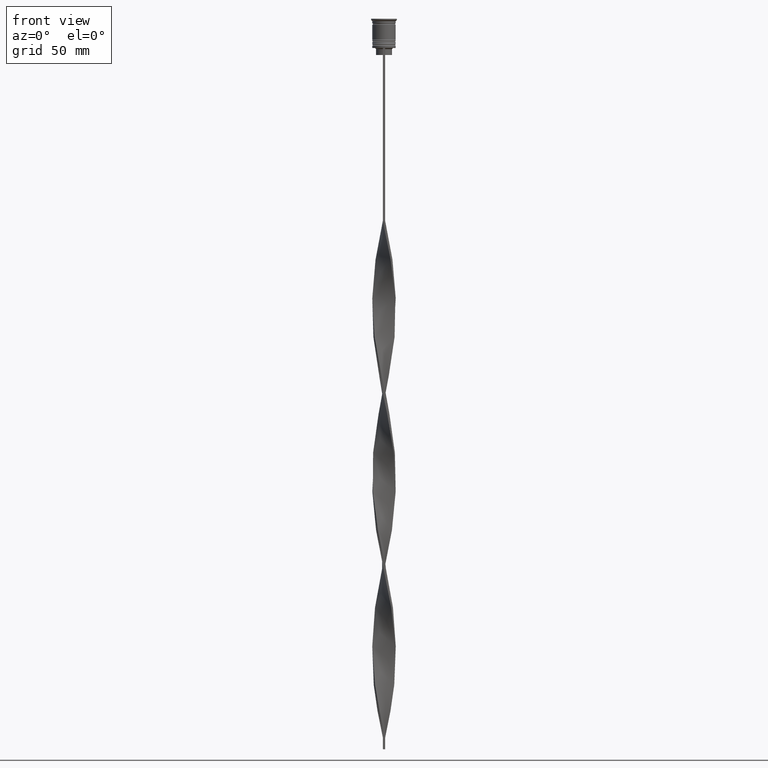
[diagram: clean part render]
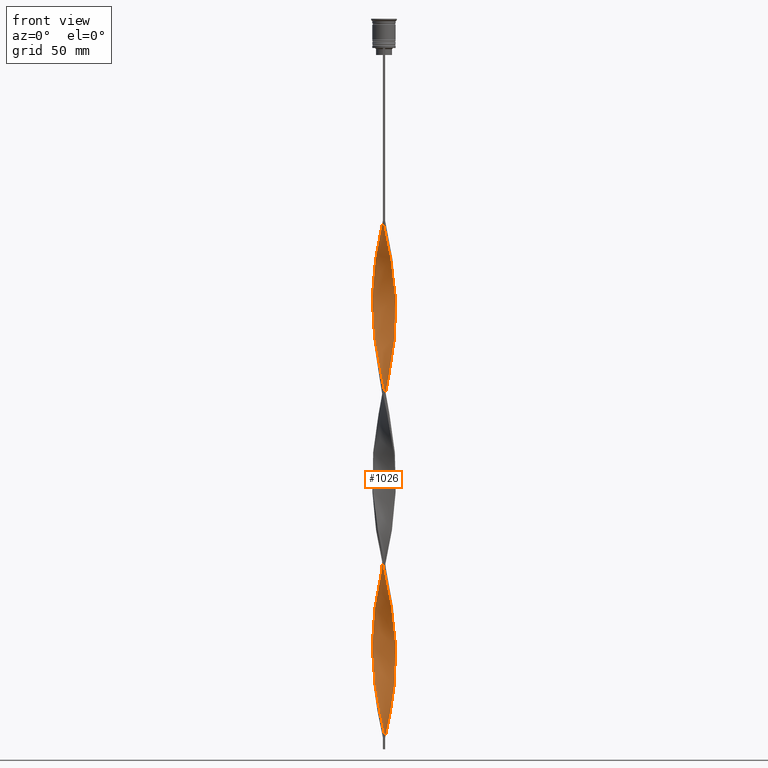
[diagram: same view with one face highlighted and labeled with its STEP entity id]
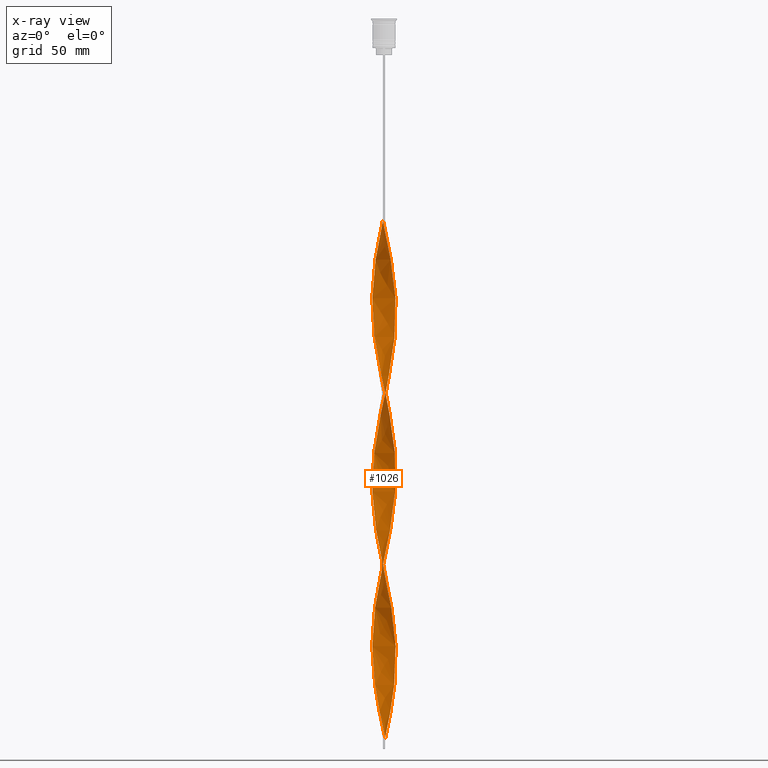
[diagram: x-ray of the same camera — body ghosted, the highlighted face saturated]
A machine part, front view. The second image highlights one B-rep face of the part: STEP entity #1026.
The next image is the same camera in x-ray: the body ghosted, the highlighted face saturated — about 0% of this face is hidden behind the body in this view.
In plain terms, the highlighted face is a freeform B-spline surface patch.
Its self-contained STEP definition (entity closure, byte-faithful):
#8 = CARTESIAN_POINT ( 'NONE',  ( -0.9143118122538339554, 4.958568818774617526, -88.43859649122805422 ) ) ;
#13 = CARTESIAN_POINT ( 'NONE',  ( 1.940000089582122778, -4.635342452550982095, -98.13157894736841058 ) ) ;
#17 = CARTESIAN_POINT ( 'NONE',  ( -1.940000089582124554, -4.635342452550982983, -148.5350877192982466 ) ) ;
#26 = CARTESIAN_POINT ( 'NONE',  ( -3.767136494507089317, 3.351425585076241553, -103.9473684210526159 ) ) ;
#31 = CARTESIAN_POINT ( 'NONE',  ( 4.651228756897744177, 1.946648882453701823, -134.9649122807017534 ) ) ;
#34 = CARTESIAN_POINT ( 'NONE',  ( 4.724258586126254933, 1.712127568673659450, -202.8157894736842195 ) ) ;
#48 = CARTESIAN_POINT ( 'NONE',  ( -4.651228756897745953, 1.946648882453702933, -111.7017543859649038 ) ) ;
#57 = CARTESIAN_POINT ( 'NONE',  ( 2.324095515968828352, -4.474589461973507376, -247.4035087719297792 ) ) ;
#61 = CARTESIAN_POINT ( 'NONE',  ( 1.150588725173101512, 4.891435943105515882, -226.0789473684210407 ) ) ;
#76 = CARTESIAN_POINT ( 'NONE',  ( -3.465633818146536704, -3.638596190637132466, -218.3245614035087954 ) ) ;
#80 = CARTESIAN_POINT ( 'NONE',  ( -3.028891101531455909, -4.031028344680096076, -142.7192982456140271 ) ) ;
#89 = CARTESIAN_POINT ( 'NONE',  ( -4.267384183849968871, 2.685666220508038382, -255.1578947368421382 ) ) ;
#94 = CARTESIAN_POINT ( 'NONE',  ( 3.651066433574118975, -3.477511282250445923, -255.1578947368421382 ) ) ;
#108 = CARTESIAN_POINT ( 'NONE',  ( 0.08568818774616430989, -5.041431181225384250, -158.2280701754386030 ) ) ;
#130 = CARTESIAN_POINT ( 'NONE',  ( -3.028891101531454133, 4.031028344680096076, -177.6140350877192873 ) ) ;
#135 = CARTESIAN_POINT ( 'NONE',  ( 1.555904663195420756, 4.796095443128455926, -224.1403508771929864 ) ) ;
#140 = CARTESIAN_POINT ( 'NONE',  ( -2.474816539791244274, -4.393023322829788135, -224.1403508771929864 ) ) ;
#146 = CARTESIAN_POINT ( 'NONE',  ( -0.08568818774616615563, -5.041431181225382474, -88.43859649122805422 ) ) ;
#151 = CARTESIAN_POINT ( 'NONE',  ( 0.3297922997023119973, 5.014103812153979156, -229.9561403508772059 ) ) ;
#161 = CARTESIAN_POINT ( 'NONE',  ( -3.028891101531455909, -4.031028344680096076, -290.0526315789473415 ) ) ;
#164 = CARTESIAN_POINT ( 'NONE',  ( 3.028891101531455021, -4.031028344680095188, -103.9473684210526301 ) ) ;
#169 = CARTESIAN_POINT ( 'NONE',  ( -3.767136494507089317, 3.351425585076241553, -251.2807017543860013 ) ) ;
#174 = EDGE_CURVE ( 'NONE', #1637, #3232, #605, .T. ) ;
#182 = CARTESIAN_POINT ( 'NONE',  ( -4.459306470373856968, 2.316157551480870769, -257.0964912280701924 ) ) ;
#188 = CARTESIAN_POINT ( 'NONE',  ( 1.150588725173099736, -4.891435943105514106, -94.25438596491227372 ) ) ;
#192 = CARTESIAN_POINT ( 'NONE',  ( -4.724258586126254045, -1.712127568673661004, -276.4824561403509051 ) ) ;
#200 = CARTESIAN_POINT ( 'NONE',  ( -0.5000000000000000000, -4.999999999999999112, -86.50000000000000000 ) ) ;
#207 = CARTESIAN_POINT ( 'NONE',  ( -4.724258586126252268, 1.712127568673660560, -191.1842105263157805 ) ) ;
#210 = CARTESIAN_POINT ( 'NONE',  ( -4.866129521283641068, -1.320664341398920527, -274.5438596491227941 ) ) ;
#224 = CARTESIAN_POINT ( 'NONE',  ( 4.941632792297182775, -0.9111889738649967541, -268.7280701754385746 ) ) ;
#244 = CARTESIAN_POINT ( 'NONE',  ( 1.717995393956228911, 4.740449624971873277, -301.6842105263157805 ) ) ;
#252 = CARTESIAN_POINT ( 'NONE',  ( -3.651066433574120751, -3.477511282250446811, -286.1754385964911762 ) ) ;
#259 = CARTESIAN_POINT ( 'NONE',  ( 0.4999999999999997780, -1.666666666666667851, -307.5000000000000000 ) ) ;
#267 = CARTESIAN_POINT ( 'NONE',  ( 3.912358312251428938, -3.153324029743398427, -257.0964912280701924 ) ) ;
#285 =( BOUNDED_SURFACE ( )  B_SPLINE_SURFACE ( 1, 2, ( 
 ( #3938, #146, #3997, #1792, #188, #2994, #3030, #3683, #478, #164, #3343, #2391, #1735, #1751, #1108, #3070, #3012, #1132, #2694, #462, #2735, #3295, #1147, #772, #3666, #440, #3377, #1469, #816, #2405, #2367, #1447, #1071, #1427, #2712, #3955, #3648, #3322, #3976, #2079, #831, #2096, #1715, #3358, #798, #2062, #2675, #130, #496, #2348, #3623, #519, #1768, #3049, #207, #2041, #2654, #2329, #3919, #3604, #754, #2020, #1407, #1091, #2157, #2137, #536, #1165, #2835, #578, #3085, #556, #290, #1524, #3128, #4013, #4081, #875, #1810, #2792, #606, #1187, #3414, #1851, #1211, #3786, #1231, #3101, #267, #854, #3431, #3398, #1828, #1546, #224, #2814, #2489, #3764, #1563, #2422, #2467, #2448, #3743, #1254, #4105, #1894, #1873, #2205, #2517, #2768, #1501, #244, #939, #3478, #895 ),
 ( #4059, #4033, #917, #2182, #3458, #3703, #3169, #3724, #627, #1487, #3149, #2752, #2118, #1628, #2264, #962, #3498, #1587, #982, #2628, #3523, #1917, #2537, #2244, #398, #668, #2223, #1648, #354, #80, #734, #1341, #17, #3194, #1358, #2930, #645, #4132, #337, #2303, #312, #2904, #1611, #1936, #3871, #3889, #1272, #1006, #2865, #1043, #2884, #3584, #1953, #1314, #3541, #1293, #1672, #3212, #2951, #1027, #34, #3808, #1997, #707, #3233, #3826, #2557, #2284, #2587, #3850, #686, #373, #61, #2610, #3560, #1975, #3257, #1443, #828, #2968, #3661, #434, #767, #492, #2402, #812, #3601, #3640, #182, #1105, #793, #3952, #3027, #2345, #2361, #1731, #3680, #3620, #1748, #3314, #1087, #3355, #3915, #1764, #1403, #161, #1068, #3993, #2075, #2707, #3044, #3009, #2058, #1691, #2035 ) ),
 .UNSPECIFIED., .F., .F., .F. ) 
 B_SPLINE_SURFACE_WITH_KNOTS ( ( 2, 2 ),
 ( 3, 2, 2, 2, 2, 2, 2, 2, 2, 2, 2, 2, 2, 2, 2, 2, 2, 2, 2, 2, 2, 2, 2, 2, 2, 2, 2, 2, 2, 2, 2, 2, 2, 2, 2, 2, 2, 2, 2, 2, 2, 2, 2, 2, 2, 2, 2, 2, 2, 2, 2, 2, 2, 2, 2, 2, 2, 3 ),
 ( 0.000000000000000000, 1.000000000000000000 ),
 ( 0.000000000000000000, 0.01315789473684210453, 0.02631578947368420907, 0.03947368421052631360, 0.05263157894736841813, 0.06578947368421052266, 0.07894736842105262720, 0.09210526315789473173, 0.1052631578947368363, 0.1184210526315789408, 0.1315789473684210453, 0.1447368421052631637, 0.1578947368421052544, 0.1710526315789473728, 0.1842105263157894635, 0.1973684210526315819, 0.2105263157894736725, 0.2236842105263157909, 0.2368421052631578816, 0.2500000000000000000, 0.2631578947368420907, 0.2763157894736842368, 0.2894736842105263275, 0.3026315789473684181, 0.3157894736842105088, 0.3289473684210526550, 0.3421052631578947456, 0.3552631578947368363, 0.3684210526315789269, 0.3815789473684210731, 0.3947368421052631637, 0.4078947368421052544, 0.4210526315789473450, 0.4342105263157894912, 0.4473684210526315819, 0.4605263157894736725, 0.4736842105263157632, 0.4868421052631579093, 0.5000000000000000000, 0.5131578947368421462, 0.5263157894736841813, 0.5394736842105263275, 0.5526315789473684736, 0.5657894736842105088, 0.5789473684210526550, 0.5921052631578946901, 0.6052631578947368363, 0.6184210526315789824, 0.6315789473684210176, 0.6447368421052631637, 0.6578947368421053099, 0.6710526315789473450, 0.6842105263157894912, 0.6973684210526315264, 0.7105263157894736725, 0.7236842105263158187, 0.7368421052631578538, 0.7500000000000000000 ),
 .UNSPECIFIED. ) 
 GEOMETRIC_REPRESENTATION_ITEM ( )  RATIONAL_B_SPLINE_SURFACE ( (
 ( 1.000000000000000000, 0.9965844930066698470, 1.000000000000000000, 0.9965844930066698470, 1.000000000000000000, 0.9965844930066698470, 1.000000000000000000, 0.9965844930066698470, 1.000000000000000000, 0.9965844930066698470, 1.000000000000000000, 0.9965844930066698470, 1.000000000000000000, 0.9965844930066698470, 1.000000000000000000, 0.9965844930066698470, 1.000000000000000000, 0.9965844930066698470, 1.000000000000000000, 0.9965844930066698470, 1.000000000000000000, 0.9965844930066698470, 1.000000000000000000, 0.9965844930066698470, 1.000000000000000000, 0.9965844930066698470, 1.000000000000000000, 0.9965844930066698470, 1.000000000000000000, 0.9965844930066698470, 1.000000000000000000, 0.9965844930066698470, 1.000000000000000000, 0.9965844930066698470, 1.000000000000000000, 0.9965844930066698470, 1.000000000000000000, 0.9965844930066698470, 1.000000000000000000, 0.9965844930066698470, 1.000000000000000000, 0.9965844930066698470, 1.000000000000000000, 0.9965844930066698470, 1.000000000000000000, 0.9965844930066698470, 1.000000000000000000, 0.9965844930066698470, 1.000000000000000000, 0.9965844930066698470, 1.000000000000000000, 0.9965844930066698470, 1.000000000000000000, 0.9965844930066698470, 1.000000000000000000, 0.9965844930066698470, 1.000000000000000000, 0.9965844930066698470, 1.000000000000000000, 0.9965844930066698470, 1.000000000000000000, 0.9965844930066698470, 1.000000000000000000, 0.9965844930066698470, 1.000000000000000000, 0.9965844930066698470, 1.000000000000000000, 0.9965844930066698470, 1.000000000000000000, 0.9965844930066698470, 1.000000000000000000, 0.9965844930066698470, 1.000000000000000000, 0.9965844930066698470, 1.000000000000000000, 0.9965844930066698470, 1.000000000000000000, 0.9965844930066698470, 1.000000000000000000, 0.9965844930066698470, 1.000000000000000000, 0.9965844930066698470, 1.000000000000000000, 0.9965844930066698470, 1.000000000000000000, 0.9965844930066698470, 1.000000000000000000, 0.9965844930066698470, 1.000000000000000000, 0.9965844930066698470, 1.000000000000000000, 0.9965844930066698470, 1.000000000000000000, 0.9965844930066698470, 1.000000000000000000, 0.9965844930066698470, 1.000000000000000000, 0.9965844930066698470, 1.000000000000000000, 0.9965844930066698470, 1.000000000000000000, 0.9965844930066698470, 1.000000000000000000, 0.9965844930066698470, 1.000000000000000000, 0.9965844930066698470, 1.000000000000000000, 0.9965844930066698470, 1.000000000000000000, 0.9965844930066698470, 1.000000000000000000, 0.9965844930066698470, 1.000000000000000000, 0.9965844930066698470, 1.000000000000000000),
 ( 1.000000000000000000, 0.9965844930066698470, 1.000000000000000000, 0.9965844930066698470, 1.000000000000000000, 0.9965844930066698470, 1.000000000000000000, 0.9965844930066698470, 1.000000000000000000, 0.9965844930066698470, 1.000000000000000000, 0.9965844930066698470, 1.000000000000000000, 0.9965844930066698470, 1.000000000000000000, 0.9965844930066698470, 1.000000000000000000, 0.9965844930066698470, 1.000000000000000000, 0.9965844930066698470, 1.000000000000000000, 0.9965844930066698470, 1.000000000000000000, 0.9965844930066698470, 1.000000000000000000, 0.9965844930066698470, 1.000000000000000000, 0.9965844930066698470, 1.000000000000000000, 0.9965844930066698470, 1.000000000000000000, 0.9965844930066698470, 1.000000000000000000, 0.9965844930066698470, 1.000000000000000000, 0.9965844930066698470, 1.000000000000000000, 0.9965844930066698470, 1.000000000000000000, 0.9965844930066698470, 1.000000000000000000, 0.9965844930066698470, 1.000000000000000000, 0.9965844930066698470, 1.000000000000000000, 0.9965844930066698470, 1.000000000000000000, 0.9965844930066698470, 1.000000000000000000, 0.9965844930066698470, 1.000000000000000000, 0.9965844930066698470, 1.000000000000000000, 0.9965844930066698470, 1.000000000000000000, 0.9965844930066698470, 1.000000000000000000, 0.9965844930066698470, 1.000000000000000000, 0.9965844930066698470, 1.000000000000000000, 0.9965844930066698470, 1.000000000000000000, 0.9965844930066698470, 1.000000000000000000, 0.9965844930066698470, 1.000000000000000000, 0.9965844930066698470, 1.000000000000000000, 0.9965844930066698470, 1.000000000000000000, 0.9965844930066698470, 1.000000000000000000, 0.9965844930066698470, 1.000000000000000000, 0.9965844930066698470, 1.000000000000000000, 0.9965844930066698470, 1.000000000000000000, 0.9965844930066698470, 1.000000000000000000, 0.9965844930066698470, 1.000000000000000000, 0.9965844930066698470, 1.000000000000000000, 0.9965844930066698470, 1.000000000000000000, 0.9965844930066698470, 1.000000000000000000, 0.9965844930066698470, 1.000000000000000000, 0.9965844930066698470, 1.000000000000000000, 0.9965844930066698470, 1.000000000000000000, 0.9965844930066698470, 1.000000000000000000, 0.9965844930066698470, 1.000000000000000000, 0.9965844930066698470, 1.000000000000000000, 0.9965844930066698470, 1.000000000000000000, 0.9965844930066698470, 1.000000000000000000, 0.9965844930066698470, 1.000000000000000000, 0.9965844930066698470, 1.000000000000000000, 0.9965844930066698470, 1.000000000000000000, 0.9965844930066698470, 1.000000000000000000, 0.9965844930066698470, 1.000000000000000000) ) ) 
 REPRESENTATION_ITEM ( '' )  SURFACE ( )  );
#286 = CARTESIAN_POINT ( 'NONE',  ( -0.5000000000000000000, -4.999999999999999112, -86.50000000000000000 ) ) ;
#290 = CARTESIAN_POINT ( 'NONE',  ( -2.096405966873735593, -4.566736473900831150, -226.0789473684210407 ) ) ;
#300 = CARTESIAN_POINT ( 'NONE',  ( -5.024212137769516140, -0.08539551914167284319, -121.3947368421052460 ) ) ;
#307 = CARTESIAN_POINT ( 'NONE',  ( 5.031288212228303358, 0.3309225680477255738, -127.2105263157894370 ) ) ;
#312 = CARTESIAN_POINT ( 'NONE',  ( 1.316153603105030268, -4.849509221873245401, -164.0438596491227941 ) ) ;
#333 = CARTESIAN_POINT ( 'NONE',  ( -3.912358312251428938, 3.153324029743398427, -183.4298245614035068 ) ) ;
#337 = CARTESIAN_POINT ( 'NONE',  ( 0.4999999999999993339, -5.000000000000000888, -160.1666666666666856 ) ) ;
#351 = CARTESIAN_POINT ( 'NONE',  ( -4.969744073267051476, -0.7427273027343286316, -202.8157894736842195 ) ) ;
#354 = CARTESIAN_POINT ( 'NONE',  ( -3.339978767552788774, -3.754269813465271000, -140.7807017543859445 ) ) ;
#365 = CARTESIAN_POINT ( 'NONE',  ( -4.378018920948803405, -2.466363786592375540, -133.0263157894736992 ) ) ;
#370 = CARTESIAN_POINT ( 'NONE',  ( -5.031288212228303358, -0.3309225680477228537, -200.8771929824561369 ) ) ;
#373 = CARTESIAN_POINT ( 'NONE',  ( 1.555904663195420978, 4.796095443128456814, -224.1403508771929580 ) ) ;
#394 = CARTESIAN_POINT ( 'NONE',  ( 0.9143118122538356207, 4.958568818774615750, -305.5614035087719458 ) ) ;
#398 = CARTESIAN_POINT ( 'NONE',  ( -4.378018920948803405, -2.466363786592375540, -133.0263157894736992 ) ) ;
#406 = CARTESIAN_POINT ( 'NONE',  ( -4.908199934305800483, 1.154532037420935797, -262.9122807017543551 ) ) ;
#413 = CARTESIAN_POINT ( 'NONE',  ( 3.912358312251428938, -3.153324029743398427, -257.0964912280701924 ) ) ;
#424 = CARTESIAN_POINT ( 'NONE',  ( 5.031288212228304246, -0.3309225680477295151, -193.1228070175438347 ) ) ;
#431 = CARTESIAN_POINT ( 'NONE',  ( -0.08568818774616615563, -5.041431181225382474, -235.7719298245613970 ) ) ;
#434 = CARTESIAN_POINT ( 'NONE',  ( -2.474816539791242054, 4.393023322829790800, -243.5263157894736707 ) ) ;
#440 = CARTESIAN_POINT ( 'NONE',  ( 4.651228756897745065, 1.946648882453701823, -134.9649122807017534 ) ) ;
#445 = CARTESIAN_POINT ( 'NONE',  ( 4.969744073267052364, -0.7427273027343305190, -191.1842105263157805 ) ) ;
#452 = CARTESIAN_POINT ( 'NONE',  ( 5.031288212228303358, 0.3309225680477255738, -274.5438596491227941 ) ) ;
#462 = CARTESIAN_POINT ( 'NONE',  ( 5.017136063310725369, -0.5017136063310729810, -123.3333333333333286 ) ) ;
#464 = EDGE_CURVE ( 'NONE', #3232, #1670, #2842, .T. ) ;
#466 = CARTESIAN_POINT ( 'NONE',  ( 4.651228756897744177, -1.946648882453705376, -185.3684210526315610 ) ) ;
#478 = CARTESIAN_POINT ( 'NONE',  ( 2.676493308750141686, -4.252808903326800838, -102.0087719298245474 ) ) ;
#483 = CARTESIAN_POINT ( 'NONE',  ( 2.676493308750143907, 4.252808903326801726, -218.3245614035087954 ) ) ;
#492 = CARTESIAN_POINT ( 'NONE',  ( -3.164131141785982759, 3.925766796198028263, -247.4035087719297792 ) ) ;
#496 = CARTESIAN_POINT ( 'NONE',  ( -3.339978767552784777, 3.754269813465272332, -179.5526315789473415 ) ) ;
#500 = CARTESIAN_POINT ( 'NONE',  ( -3.028891101531455909, -4.031028344680096076, -290.0526315789473415 ) ) ;
#519 = CARTESIAN_POINT ( 'NONE',  ( -4.173650190928737125, 2.829136777236351818, -185.3684210526315894 ) ) ;
#536 = CARTESIAN_POINT ( 'NONE',  ( -4.017260339178530870, -3.018545902792136193, -214.4473684210526301 ) ) ;
#556 = CARTESIAN_POINT ( 'NONE',  ( -2.474816539791244274, -4.393023322829788135, -224.1403508771929580 ) ) ;
#578 = CARTESIAN_POINT ( 'NONE',  ( -3.164131141785982315, -3.925766796198026487, -220.2631578947368212 ) ) ;
#601 = CARTESIAN_POINT ( 'NONE',  ( 1.555904663195416759, -4.796095443128455038, -96.19298245614034215 ) ) ;
#605 =( BOUNDED_CURVE ( )  B_SPLINE_CURVE ( 2, ( #286, #910, #623, #2900, #1889, #601, #13, #2859, #2579, #3227, #3822, #2511, #1560, #3844, #1289, #3454, #2484, #2830, #682, #2810, #4125, #307, #1580, #3782, #3758, #31, #1269, #3473, #4100, #1624, #3804, #1309, #1002, #1247, #978, #641, #934, #2200, #2178, #2879, #1870, #1911, #2220, #2260, #1228, #3494, #3537, #3190, #3145, #4076, #333, #1932, #1605, #2553, #2238, #1950, #3519, #665, #3207, #370, #351, #1992, #2358, #703, #3635, #3289, #2642, #748, #76, #3005, #730, #140, #1084, #3273, #2605, #1101, #2031, #431, #1040, #1728, #2341, #3908, #2964, #57, #1970, #1420, #1642, #94, #413, #3932, #3336, #1337, #3308, #2946, #1687, #2687, #786, #452, #2922, #3866, #3949, #2055, #1355, #1667, #1372, #1023, #2280, #1065, #3556, #3615, #3251, #2299, #2322, #394, #3577 ),
 .UNSPECIFIED., .F., .T. ) 
 B_SPLINE_CURVE_WITH_KNOTS ( ( 3, 2, 2, 2, 2, 2, 2, 2, 2, 2, 2, 2, 2, 2, 2, 2, 2, 2, 2, 2, 2, 2, 2, 2, 2, 2, 2, 2, 2, 2, 2, 2, 2, 2, 2, 2, 2, 2, 2, 2, 2, 2, 2, 2, 2, 2, 2, 2, 2, 2, 2, 2, 2, 2, 2, 2, 2, 3 ),
 ( 0.000000000000000000, 0.01315789473684210453, 0.02631578947368420907, 0.03947368421052631360, 0.05263157894736841813, 0.06578947368421052266, 0.07894736842105262720, 0.09210526315789473173, 0.1052631578947368363, 0.1184210526315789408, 0.1315789473684210453, 0.1447368421052631637, 0.1578947368421052544, 0.1710526315789473728, 0.1842105263157894635, 0.1973684210526315541, 0.2105263157894736725, 0.2236842105263157909, 0.2368421052631578816, 0.2500000000000000000, 0.2631578947368420907, 0.2763157894736842368, 0.2894736842105263275, 0.3026315789473684181, 0.3157894736842105088, 0.3289473684210526550, 0.3421052631578947456, 0.3552631578947368918, 0.3684210526315789269, 0.3815789473684210731, 0.3947368421052631082, 0.4078947368421052544, 0.4210526315789473450, 0.4342105263157895467, 0.4473684210526315819, 0.4605263157894736725, 0.4736842105263157632, 0.4868421052631579093, 0.5000000000000000000, 0.5131578947368421462, 0.5263157894736841813, 0.5394736842105263275, 0.5526315789473684736, 0.5657894736842105088, 0.5789473684210526550, 0.5921052631578946901, 0.6052631578947368363, 0.6184210526315789824, 0.6315789473684210176, 0.6447368421052631637, 0.6578947368421053099, 0.6710526315789473450, 0.6842105263157894912, 0.6973684210526315264, 0.7105263157894737835, 0.7236842105263158187, 0.7368421052631578538, 0.7500000000000000000 ),
 .UNSPECIFIED. ) 
 CURVE ( )  GEOMETRIC_REPRESENTATION_ITEM ( )  RATIONAL_B_SPLINE_CURVE ( ( 1.000000000000000000, 0.9965844930066698470, 1.000000000000000000, 0.9965844930066698470, 1.000000000000000000, 0.9965844930066698470, 1.000000000000000000, 0.9965844930066698470, 1.000000000000000000, 0.9965844930066698470, 1.000000000000000000, 0.9965844930066698470, 1.000000000000000000, 0.9965844930066698470, 1.000000000000000000, 0.9965844930066698470, 1.000000000000000000, 0.9965844930066698470, 1.000000000000000000, 0.9965844930066698470, 1.000000000000000000, 0.9965844930066698470, 1.000000000000000000, 0.9965844930066698470, 1.000000000000000000, 0.9965844930066698470, 1.000000000000000000, 0.9965844930066698470, 1.000000000000000000, 0.9965844930066698470, 1.000000000000000000, 0.9965844930066698470, 1.000000000000000000, 0.9965844930066698470, 1.000000000000000000, 0.9965844930066698470, 1.000000000000000000, 0.9965844930066698470, 1.000000000000000000, 0.9965844930066698470, 1.000000000000000000, 0.9965844930066698470, 1.000000000000000000, 0.9965844930066698470, 1.000000000000000000, 0.9965844930066698470, 1.000000000000000000, 0.9965844930066698470, 1.000000000000000000, 0.9965844930066698470, 1.000000000000000000, 0.9965844930066698470, 1.000000000000000000, 0.9965844930066698470, 1.000000000000000000, 0.9965844930066698470, 1.000000000000000000, 0.9965844930066698470, 1.000000000000000000, 0.9965844930066698470, 1.000000000000000000, 0.9965844930066698470, 1.000000000000000000, 0.9965844930066698470, 1.000000000000000000, 0.9965844930066698470, 1.000000000000000000, 0.9965844930066698470, 1.000000000000000000, 0.9965844930066698470, 1.000000000000000000, 0.9965844930066698470, 1.000000000000000000, 0.9965844930066698470, 1.000000000000000000, 0.9965844930066698470, 1.000000000000000000, 0.9965844930066698470, 1.000000000000000000, 0.9965844930066698470, 1.000000000000000000, 0.9965844930066698470, 1.000000000000000000, 0.9965844930066698470, 1.000000000000000000, 0.9965844930066698470, 1.000000000000000000, 0.9965844930066698470, 1.000000000000000000, 0.9965844930066698470, 1.000000000000000000, 0.9965844930066698470, 1.000000000000000000, 0.9965844930066698470, 1.000000000000000000, 0.9965844930066698470, 1.000000000000000000, 0.9965844930066698470, 1.000000000000000000, 0.9965844930066698470, 1.000000000000000000, 0.9965844930066698470, 1.000000000000000000, 0.9965844930066698470, 1.000000000000000000, 0.9965844930066698470, 1.000000000000000000, 0.9965844930066698470, 1.000000000000000000, 0.9965844930066698470, 1.000000000000000000, 0.9965844930066698470, 1.000000000000000000, 0.9965844930066698470, 1.000000000000000000 ) ) 
 REPRESENTATION_ITEM ( '' )  );
#606 = CARTESIAN_POINT ( 'NONE',  ( 1.150588725173099736, -4.891435943105514106, -241.5877192982455881 ) ) ;
#618 = CARTESIAN_POINT ( 'NONE',  ( -0.5000000000000000000, 5.000000000000000888, -86.50000000000000000 ) ) ;
#619 = CARTESIAN_POINT ( 'NONE',  ( 0.5000000000000006661, 4.999999999999999112, -307.5000000000000000 ) ) ;
#623 = CARTESIAN_POINT ( 'NONE',  ( 0.3297922997023081670, -5.014103812153978268, -90.37719298245613686 ) ) ;
#627 = CARTESIAN_POINT ( 'NONE',  ( -3.465633818146536704, 3.638596190637135130, -102.0087719298245474 ) ) ;
#635 = CARTESIAN_POINT ( 'NONE',  ( -4.173650190928740678, -2.829136777236350486, -134.9649122807017534 ) ) ;
#641 = CARTESIAN_POINT ( 'NONE',  ( 1.717995393956228911, 4.740449624971872389, -154.3508771929824661 ) ) ;
#645 = CARTESIAN_POINT ( 'NONE',  ( -0.3297922997023091662, -5.014103812153980044, -156.2894736842105203 ) ) ;
#665 = CARTESIAN_POINT ( 'NONE',  ( -5.017136063310725369, 0.5017136063310736471, -197.0000000000000000 ) ) ;
#668 = CARTESIAN_POINT ( 'NONE',  ( -4.173650190928740678, -2.829136777236350486, -134.9649122807017534 ) ) ;
#682 = CARTESIAN_POINT ( 'NONE',  ( 4.941632792297182775, -0.9111889738649967541, -121.3947368421052460 ) ) ;
#686 = CARTESIAN_POINT ( 'NONE',  ( 1.940000089582126774, 4.635342452550982095, -222.2017543859649038 ) ) ;
#696 = CARTESIAN_POINT ( 'NONE',  ( -4.941632792297183663, -0.9111889738649963100, -125.2719298245613970 ) ) ;
#703 = CARTESIAN_POINT ( 'NONE',  ( -4.651228756897745065, -1.946648882453699159, -208.6315789473684106 ) ) ;
#707 = CARTESIAN_POINT ( 'NONE',  ( 4.173650190928741566, 2.829136777236347822, -208.6315789473684106 ) ) ;
#722 = CARTESIAN_POINT ( 'NONE',  ( -4.651228756897745953, 1.946648882453702933, -259.0350877192983035 ) ) ;
#730 = CARTESIAN_POINT ( 'NONE',  ( -2.819473840788614627, -4.159395059513905757, -222.2017543859649038 ) ) ;
#734 = CARTESIAN_POINT ( 'NONE',  ( -2.676493308750143463, -4.252808903326802614, -144.6578947368421098 ) ) ;
#742 = CARTESIAN_POINT ( 'NONE',  ( 4.582387650968867021, 2.103590795948400594, -204.7543859649123021 ) ) ;
#748 = CARTESIAN_POINT ( 'NONE',  ( -3.767136494507089761, -3.351425585076238001, -216.3859649122807127 ) ) ;
#754 = CARTESIAN_POINT ( 'NONE',  ( -4.969744073267051476, -0.7427273027343286316, -202.8157894736842195 ) ) ;
#758 = CARTESIAN_POINT ( 'NONE',  ( -1.717995393956227135, 4.740449624971874165, -239.6491228070175339 ) ) ;
#767 = CARTESIAN_POINT ( 'NONE',  ( -2.819473840788612851, 4.159395059513909310, -245.4649122807017534 ) ) ;
#772 = CARTESIAN_POINT ( 'NONE',  ( 4.908199934305798706, 1.154532037420934687, -131.0877192982456449 ) ) ;
#777 = CARTESIAN_POINT ( 'NONE',  ( 3.465633818146536704, -3.638596190637135130, -175.6754385964912046 ) ) ;
#786 = CARTESIAN_POINT ( 'NONE',  ( 5.024212137769514364, -0.08539551914167359259, -272.6052631578947398 ) ) ;
#793 = CARTESIAN_POINT ( 'NONE',  ( -4.779714345601773218, 1.550590459937319476, -260.9736842105263577 ) ) ;
#798 = CARTESIAN_POINT ( 'NONE',  ( -1.940000089582122333, 4.635342452550982095, -171.7982456140350962 ) ) ;
#802 = CARTESIAN_POINT ( 'NONE',  ( 4.173650190928741566, 2.829136777236348266, -208.6315789473684106 ) ) ;
#812 = CARTESIAN_POINT ( 'NONE',  ( -3.767136494507089317, 3.351425585076241997, -251.2807017543860013 ) ) ;
#816 = CARTESIAN_POINT ( 'NONE',  ( 4.017260339178529094, 3.018545902792137969, -140.7807017543859445 ) ) ;
#828 = CARTESIAN_POINT ( 'NONE',  ( -1.316153603105030712, 4.849509221873245401, -237.7105263157894797 ) ) ;
#831 = CARTESIAN_POINT ( 'NONE',  ( -0.3297922997023075564, 5.014103812153978268, -164.0438596491227941 ) ) ;
#846 = CARTESIAN_POINT ( 'NONE',  ( 0.5000000000000006661, 4.999999999999999112, -307.5000000000000000 ) ) ;
#854 = CARTESIAN_POINT ( 'NONE',  ( 4.173650190928738901, -2.829136777236350042, -259.0350877192983035 ) ) ;
#868 = DIRECTION ( 'NONE',  ( 0.000000000000000000, 1.000000000000000000, 0.000000000000000000 ) ) ;
#875 = CARTESIAN_POINT ( 'NONE',  ( -0.08568818774616615563, -5.041431181225382474, -235.7719298245614254 ) ) ;
#885 = CARTESIAN_POINT ( 'NONE',  ( 0.4999999999999993339, -5.000000000000000888, -307.5000000000000000 ) ) ;
#895 = CARTESIAN_POINT ( 'NONE',  ( 0.5000000000000006661, 4.999999999999999112, -307.5000000000000000 ) ) ;
#900 = VERTEX_POINT ( 'NONE', #3853 ) ;
#910 = CARTESIAN_POINT ( 'NONE',  ( -0.08568818774616615563, -5.041431181225382474, -88.43859649122805422 ) ) ;
#917 = CARTESIAN_POINT ( 'NONE',  ( -1.316153603105030712, 4.849509221873245401, -90.37719298245613686 ) ) ;
#934 = CARTESIAN_POINT ( 'NONE',  ( 1.316153603105031156, 4.849509221873243625, -156.2894736842105203 ) ) ;
#939 = CARTESIAN_POINT ( 'NONE',  ( 1.316153603105031156, 4.849509221873243625, -303.6228070175438347 ) ) ;
#953 = CARTESIAN_POINT ( 'NONE',  ( -2.676493308750143463, -4.252808903326802614, -144.6578947368421098 ) ) ;
#962 = CARTESIAN_POINT ( 'NONE',  ( -4.908199934305800483, 1.154532037420935797, -115.5789473684210265 ) ) ;
#978 = CARTESIAN_POINT ( 'NONE',  ( 2.096405966873735149, 4.566736473900831150, -152.4122807017543835 ) ) ;
#982 = CARTESIAN_POINT ( 'NONE',  ( -5.024212137769516140, -0.08539551914167284319, -121.3947368421052460 ) ) ;
#994 = CARTESIAN_POINT ( 'NONE',  ( -4.969744073267053253, 0.7427273027343311851, -117.5175438596491233 ) ) ;
#1002 = CARTESIAN_POINT ( 'NONE',  ( 2.819473840788612851, 4.159395059513907533, -148.5350877192982466 ) ) ;
#1006 = CARTESIAN_POINT ( 'NONE',  ( 3.767136494507088873, -3.351425585076243330, -177.6140350877192873 ) ) ;
#1023 = CARTESIAN_POINT ( 'NONE',  ( 3.767136494507087541, 3.351425585076240221, -290.0526315789473415 ) ) ;
#1026 = ADVANCED_FACE ( 'NONE', ( #2000 ), #285, .T. ) ;
#1027 = CARTESIAN_POINT ( 'NONE',  ( 4.866129521283641068, 1.320664341398917641, -200.8771929824561084 ) ) ;
#1040 = CARTESIAN_POINT ( 'NONE',  ( 0.3297922997023081670, -5.014103812153978268, -237.7105263157894797 ) ) ;
#1043 = CARTESIAN_POINT ( 'NONE',  ( 4.267384183849968871, -2.685666220508039714, -181.4912280701754241 ) ) ;
#1057 = CARTESIAN_POINT ( 'NONE',  ( 4.017260339178527317, -3.018545902792142410, -179.5526315789473415 ) ) ;
#1065 = CARTESIAN_POINT ( 'NONE',  ( 3.164131141785981871, 3.925766796198026487, -293.9298245614035068 ) ) ;
#1068 = CARTESIAN_POINT ( 'NONE',  ( -2.676493308750143463, -4.252808903326802614, -291.9912280701753957 ) ) ;
#1071 = CARTESIAN_POINT ( 'NONE',  ( 2.819473840788612851, 4.159395059513907533, -148.5350877192982466 ) ) ;
#1079 = CARTESIAN_POINT ( 'NONE',  ( 1.717995393956226025, -4.740449624971875053, -165.9824561403508199 ) ) ;
#1084 = CARTESIAN_POINT ( 'NONE',  ( -2.096405966873735593, -4.566736473900831150, -226.0789473684210407 ) ) ;
#1087 = CARTESIAN_POINT ( 'NONE',  ( -4.378018920948803405, -2.466363786592375540, -280.3596491228070136 ) ) ;
#1091 = CARTESIAN_POINT ( 'NONE',  ( -4.651228756897745953, -1.946648882453699381, -208.6315789473684106 ) ) ;
#1095 = CARTESIAN_POINT ( 'NONE',  ( 3.028891101531457686, 4.031028344680094300, -216.3859649122807127 ) ) ;
#1101 = CARTESIAN_POINT ( 'NONE',  ( -0.9143118122538361758, -4.958568818774615750, -231.8947368421052602 ) ) ;
#1105 = CARTESIAN_POINT ( 'NONE',  ( -4.651228756897745953, 1.946648882453703155, -259.0350877192983035 ) ) ;
#1108 = CARTESIAN_POINT ( 'NONE',  ( 4.378018920948801629, -2.466363786592375984, -113.6403508771929864 ) ) ;
#1112 = CARTESIAN_POINT ( 'NONE',  ( 3.651066433574120751, 3.477511282250446367, -212.5087719298246043 ) ) ;
#1132 = CARTESIAN_POINT ( 'NONE',  ( 4.866129521283638404, -1.320664341398920749, -119.4561403508771917 ) ) ;
#1135 = CARTESIAN_POINT ( 'NONE',  ( -0.5000000000000000000, 5.000000000000000888, -233.8333333333333428 ) ) ;
#1147 = CARTESIAN_POINT ( 'NONE',  ( 4.969744073267050588, 0.7427273027343300749, -129.1491228070175339 ) ) ;
#1165 = CARTESIAN_POINT ( 'NONE',  ( -3.767136494507089761, -3.351425585076238445, -216.3859649122807127 ) ) ;
#1187 = CARTESIAN_POINT ( 'NONE',  ( 1.555904663195416537, -4.796095443128455926, -243.5263157894736707 ) ) ;
#1211 = CARTESIAN_POINT ( 'NONE',  ( 2.676493308750141686, -4.252808903326800838, -249.3421052631578902 ) ) ;
#1228 = CARTESIAN_POINT ( 'NONE',  ( -1.940000089582122333, 4.635342452550982095, -171.7982456140350962 ) ) ;
#1231 = CARTESIAN_POINT ( 'NONE',  ( 3.339978767552786554, -3.754269813465270555, -253.2192982456140555 ) ) ;
#1247 = CARTESIAN_POINT ( 'NONE',  ( 2.474816539791243830, 4.393023322829788135, -150.4736842105263008 ) ) ;
#1254 = CARTESIAN_POINT ( 'NONE',  ( 4.267384183849967982, 2.685666220508037494, -286.1754385964911762 ) ) ;
#1269 = CARTESIAN_POINT ( 'NONE',  ( 4.459306470373856079, 2.316157551480868548, -136.9035087719298076 ) ) ;
#1272 = CARTESIAN_POINT ( 'NONE',  ( 3.465633818146536704, -3.638596190637135130, -175.6754385964912046 ) ) ;
#1289 = CARTESIAN_POINT ( 'NONE',  ( 4.378018920948801629, -2.466363786592375984, -113.6403508771929864 ) ) ;
#1293 = CARTESIAN_POINT ( 'NONE',  ( 5.031288212228304246, -0.3309225680477295151, -193.1228070175438063 ) ) ;
#1304 = CARTESIAN_POINT ( 'NONE',  ( -4.267384183849968871, 2.685666220508038382, -107.8245614035087527 ) ) ;
#1309 = CARTESIAN_POINT ( 'NONE',  ( 3.164131141785981871, 3.925766796198026487, -146.5964912280701355 ) ) ;
#1314 = CARTESIAN_POINT ( 'NONE',  ( 4.908199934305800483, -1.154532037420936241, -189.2456140350877263 ) ) ;
#1337 = CARTESIAN_POINT ( 'NONE',  ( 4.582387650968865245, -2.103590795948401038, -262.9122807017543551 ) ) ;
#1341 = CARTESIAN_POINT ( 'NONE',  ( -2.324095515968829684, -4.474589461973509152, -146.5964912280701355 ) ) ;
#1348 = CARTESIAN_POINT ( 'NONE',  ( -1.717995393956227135, 4.740449624971874165, -92.31578947368420529 ) ) ;
#1355 = CARTESIAN_POINT ( 'NONE',  ( 4.459306470373856079, 2.316157551480868548, -284.2368421052631220 ) ) ;
#1358 = CARTESIAN_POINT ( 'NONE',  ( -1.150588725173101068, -4.891435943105515882, -152.4122807017543835 ) ) ;
#1366 = CARTESIAN_POINT ( 'NONE',  ( -3.164131141785982759, 3.925766796198028263, -247.4035087719297792 ) ) ;
#1372 = CARTESIAN_POINT ( 'NONE',  ( 4.017260339178529094, 3.018545902792137969, -288.1140350877192873 ) ) ;
#1391 = CARTESIAN_POINT ( 'NONE',  ( 2.474816539791241610, -4.393023322829790800, -169.8596491228070136 ) ) ;
#1395 = VECTOR ( 'NONE', #868, 1000.000000000000000 ) ;
#1403 = CARTESIAN_POINT ( 'NONE',  ( -3.339978767552788774, -3.754269813465271000, -288.1140350877192873 ) ) ;
#1407 = CARTESIAN_POINT ( 'NONE',  ( -4.779714345601771441, -1.550590459937318588, -206.6929824561403564 ) ) ;
#1414 = CARTESIAN_POINT ( 'NONE',  ( 3.767136494507088873, -3.351425585076242886, -177.6140350877192873 ) ) ;
#1420 = CARTESIAN_POINT ( 'NONE',  ( 3.028891101531455021, -4.031028344680095188, -251.2807017543860013 ) ) ;
#1427 = CARTESIAN_POINT ( 'NONE',  ( 2.474816539791243830, 4.393023322829788135, -150.4736842105263008 ) ) ;
#1432 = CARTESIAN_POINT ( 'NONE',  ( -1.316153603105030712, 4.849509221873245401, -237.7105263157894797 ) ) ;
#1443 = CARTESIAN_POINT ( 'NONE',  ( -0.9143118122538339554, 4.958568818774617526, -235.7719298245614254 ) ) ;
#1447 = CARTESIAN_POINT ( 'NONE',  ( 3.164131141785981871, 3.925766796198026487, -146.5964912280701355 ) ) ;
#1453 = CARTESIAN_POINT ( 'NONE',  ( -4.017260339178529094, 3.018545902792140634, -253.2192982456140555 ) ) ;
#1469 = CARTESIAN_POINT ( 'NONE',  ( 4.267384183849967982, 2.685666220508037494, -138.8421052631578902 ) ) ;
#1473 = CARTESIAN_POINT ( 'NONE',  ( -1.940000089582124554, -4.635342452550982983, -295.8684210526315610 ) ) ;
#1481 = LINE ( 'NONE', #200, #1395 ) ;
#1487 = CARTESIAN_POINT ( 'NONE',  ( -3.767136494507089317, 3.351425585076241997, -103.9473684210526301 ) ) ;
#1490 = CARTESIAN_POINT ( 'NONE',  ( -3.912358312251430714, -3.153324029743398427, -284.2368421052631220 ) ) ;
#1501 = CARTESIAN_POINT ( 'NONE',  ( 2.096405966873735149, 4.566736473900831150, -299.7456140350877263 ) ) ;
#1524 = CARTESIAN_POINT ( 'NONE',  ( -1.717995393956227135, -4.740449624971873277, -228.0175438596490949 ) ) ;
#1531 = CARTESIAN_POINT ( 'NONE',  ( -0.3297922997023091662, -5.014103812153980044, -303.6228070175438347 ) ) ;
#1546 = CARTESIAN_POINT ( 'NONE',  ( 4.866129521283638404, -1.320664341398920749, -266.7894736842105203 ) ) ;
#1560 = CARTESIAN_POINT ( 'NONE',  ( 3.912358312251428938, -3.153324029743398427, -109.7631578947368354 ) ) ;
#1563 = CARTESIAN_POINT ( 'NONE',  ( 4.969744073267050588, 0.7427273027343300749, -276.4824561403509051 ) ) ;
#1572 = CARTESIAN_POINT ( 'NONE',  ( -4.908199934305800483, 1.154532037420935797, -115.5789473684210265 ) ) ;
#1580 = CARTESIAN_POINT ( 'NONE',  ( 4.969744073267050588, 0.7427273027343300749, -129.1491228070175339 ) ) ;
#1587 = CARTESIAN_POINT ( 'NONE',  ( -5.031288212228304246, 0.3309225680477266840, -119.4561403508771917 ) ) ;
#1605 = CARTESIAN_POINT ( 'NONE',  ( -4.378018920948800741, 2.466363786592377760, -187.3070175438596436 ) ) ;
#1611 = CARTESIAN_POINT ( 'NONE',  ( 2.096405966873734705, -4.566736473900832927, -167.9210526315789309 ) ) ;
#1619 = CARTESIAN_POINT ( 'NONE',  ( -1.316153603105030712, 4.849509221873245401, -90.37719298245613686 ) ) ;
#1624 = CARTESIAN_POINT ( 'NONE',  ( 3.767136494507087541, 3.351425585076240221, -142.7192982456140271 ) ) ;
#1628 = CARTESIAN_POINT ( 'NONE',  ( -4.651228756897745953, 1.946648882453703155, -111.7017543859649038 ) ) ;
#1637 = VERTEX_POINT ( 'NONE', #3351 ) ;
#1642 = CARTESIAN_POINT ( 'NONE',  ( 3.339978767552786554, -3.754269813465270555, -253.2192982456140555 ) ) ;
#1648 = CARTESIAN_POINT ( 'NONE',  ( -3.651066433574120751, -3.477511282250446811, -138.8421052631578902 ) ) ;
#1667 = CARTESIAN_POINT ( 'NONE',  ( 4.267384183849967094, 2.685666220508037494, -286.1754385964911762 ) ) ;
#1670 = VERTEX_POINT ( 'NONE', #2666 ) ;
#1672 = CARTESIAN_POINT ( 'NONE',  ( 5.024212137769516140, 0.08539551914167110847, -195.0614035087719458 ) ) ;
#1680 = CARTESIAN_POINT ( 'NONE',  ( -4.969744073267053253, 0.7427273027343311851, -264.8508771929824661 ) ) ;
#1687 = CARTESIAN_POINT ( 'NONE',  ( 4.941632792297182775, -0.9111889738649967541, -268.7280701754385746 ) ) ;
#1691 = CARTESIAN_POINT ( 'NONE',  ( 0.08568818774616432377, -5.041431181225384250, -305.5614035087719458 ) ) ;
#1699 = CARTESIAN_POINT ( 'NONE',  ( -5.017136063310726257, -0.5017136063310723149, -270.6666666666666288 ) ) ;
#1715 = CARTESIAN_POINT ( 'NONE',  ( -1.150588725173099514, 4.891435943105514106, -167.9210526315789309 ) ) ;
#1721 = CARTESIAN_POINT ( 'NONE',  ( 5.024212137769516140, 0.08539551914167110847, -195.0614035087719458 ) ) ;
#1728 = CARTESIAN_POINT ( 'NONE',  ( 0.7452727871507823787, -4.986776443082572285, -239.6491228070175339 ) ) ;
#1731 = CARTESIAN_POINT ( 'NONE',  ( -5.017136063310728034, -0.5017136063310723149, -270.6666666666665719 ) ) ;
#1735 = CARTESIAN_POINT ( 'NONE',  ( 3.912358312251428938, -3.153324029743398427, -109.7631578947368354 ) ) ;
#1739 = CARTESIAN_POINT ( 'NONE',  ( 1.940000089582126774, 4.635342452550982095, -222.2017543859649038 ) ) ;
#1748 = CARTESIAN_POINT ( 'NONE',  ( -4.724258586126254045, -1.712127568673661004, -276.4824561403509051 ) ) ;
#1751 = CARTESIAN_POINT ( 'NONE',  ( 4.173650190928738901, -2.829136777236350042, -111.7017543859649038 ) ) ;
#1755 = CARTESIAN_POINT ( 'NONE',  ( 1.316153603105030268, -4.849509221873245401, -164.0438596491227941 ) ) ;
#1764 = CARTESIAN_POINT ( 'NONE',  ( -3.651066433574120751, -3.477511282250446811, -286.1754385964911762 ) ) ;
#1768 = CARTESIAN_POINT ( 'NONE',  ( -4.378018920948800741, 2.466363786592377760, -187.3070175438596436 ) ) ;
#1792 = CARTESIAN_POINT ( 'NONE',  ( 0.7452727871507823787, -4.986776443082572285, -92.31578947368419108 ) ) ;
#1810 = CARTESIAN_POINT ( 'NONE',  ( 0.3297922997023081670, -5.014103812153978268, -237.7105263157894797 ) ) ;
#1828 = CARTESIAN_POINT ( 'NONE',  ( 4.724258586126251380, -1.712127568673661226, -264.8508771929824661 ) ) ;
#1851 = CARTESIAN_POINT ( 'NONE',  ( 2.324095515968828796, -4.474589461973508264, -247.4035087719297792 ) ) ;
#1870 = CARTESIAN_POINT ( 'NONE',  ( -0.3297922997023075564, 5.014103812153978268, -164.0438596491227941 ) ) ;
#1873 = CARTESIAN_POINT ( 'NONE',  ( 3.465633818146536260, 3.638596190637132466, -291.9912280701753957 ) ) ;
#1883 = CARTESIAN_POINT ( 'NONE',  ( -4.017260339178529094, 3.018545902792140634, -105.8859649122806985 ) ) ;
#1889 = CARTESIAN_POINT ( 'NONE',  ( 1.150588725173099736, -4.891435943105514106, -94.25438596491227372 ) ) ;
#1894 = CARTESIAN_POINT ( 'NONE',  ( 3.767136494507087541, 3.351425585076240665, -290.0526315789473415 ) ) ;
#1911 = CARTESIAN_POINT ( 'NONE',  ( -0.7452727871507809354, 4.986776443082573174, -165.9824561403508199 ) ) ;
#1917 = CARTESIAN_POINT ( 'NONE',  ( -4.866129521283641068, -1.320664341398920527, -127.2105263157894370 ) ) ;
#1932 = CARTESIAN_POINT ( 'NONE',  ( -4.173650190928737125, 2.829136777236352263, -185.3684210526315610 ) ) ;
#1936 = CARTESIAN_POINT ( 'NONE',  ( 2.474816539791241610, -4.393023322829790800, -169.8596491228070136 ) ) ;
#1945 = CARTESIAN_POINT ( 'NONE',  ( -5.031288212228304246, 0.3309225680477266840, -119.4561403508771917 ) ) ;
#1950 = CARTESIAN_POINT ( 'NONE',  ( -4.866129521283638404, 1.320664341398923192, -193.1228070175438347 ) ) ;
#1953 = CARTESIAN_POINT ( 'NONE',  ( 4.779714345601772330, -1.550590459937321031, -187.3070175438596436 ) ) ;
#1970 = CARTESIAN_POINT ( 'NONE',  ( 2.676493308750141686, -4.252808903326800838, -249.3421052631578902 ) ) ;
#1975 = CARTESIAN_POINT ( 'NONE',  ( -0.08568818774616367151, 5.041431181225384250, -231.8947368421052886 ) ) ;
#1987 = CARTESIAN_POINT ( 'NONE',  ( 2.819473840788612407, -4.159395059513909310, -171.7982456140350962 ) ) ;
#1992 = CARTESIAN_POINT ( 'NONE',  ( -4.908199934305798706, -1.154532037420933799, -204.7543859649123021 ) ) ;
#1997 = CARTESIAN_POINT ( 'NONE',  ( 4.378018920948803405, 2.466363786592376872, -206.6929824561403564 ) ) ;
#2000 = FACE_OUTER_BOUND ( 'NONE', #2764, .T. ) ;
#2004 = CARTESIAN_POINT ( 'NONE',  ( -5.031288212228304246, 0.3309225680477266840, -266.7894736842105203 ) ) ;
#2020 = CARTESIAN_POINT ( 'NONE',  ( -4.908199934305798706, -1.154532037420933799, -204.7543859649123306 ) ) ;
#2024 = CARTESIAN_POINT ( 'NONE',  ( -0.08568818774616365763, 5.041431181225384250, -231.8947368421052602 ) ) ;
#2031 = CARTESIAN_POINT ( 'NONE',  ( -0.5000000000000000000, -4.999999999999999112, -233.8333333333333428 ) ) ;
#2035 = CARTESIAN_POINT ( 'NONE',  ( 0.4999999999999993339, -5.000000000000000888, -307.5000000000000000 ) ) ;
#2041 = CARTESIAN_POINT ( 'NONE',  ( -4.866129521283638404, 1.320664341398923192, -193.1228070175438063 ) ) ;
#2048 = CARTESIAN_POINT ( 'NONE',  ( 2.324095515968829684, 4.474589461973509152, -220.2631578947368212 ) ) ;
#2055 = CARTESIAN_POINT ( 'NONE',  ( 4.651228756897744177, 1.946648882453701823, -282.2982456140351246 ) ) ;
#2058 = CARTESIAN_POINT ( 'NONE',  ( -0.3297922997023091662, -5.014103812153980044, -303.6228070175438347 ) ) ;
#2062 = CARTESIAN_POINT ( 'NONE',  ( -2.324095515968827463, 4.474589461973509152, -173.7368421052631220 ) ) ;
#2066 = CARTESIAN_POINT ( 'NONE',  ( 4.941632792297183663, 0.9111889738649967541, -198.9385964912280826 ) ) ;
#2075 = CARTESIAN_POINT ( 'NONE',  ( -1.940000089582124554, -4.635342452550982983, -295.8684210526315610 ) ) ;
#2079 = CARTESIAN_POINT ( 'NONE',  ( 0.08568818774616784872, 5.041431181225382474, -162.1052631578947683 ) ) ;
#2096 = CARTESIAN_POINT ( 'NONE',  ( -0.7452727871507810464, 4.986776443082573174, -165.9824561403508199 ) ) ;
#2118 = CARTESIAN_POINT ( 'NONE',  ( -4.459306470373856968, 2.316157551480870769, -109.7631578947368354 ) ) ;
#2137 = CARTESIAN_POINT ( 'NONE',  ( -4.267384183849968871, -2.685666220508036606, -212.5087719298245759 ) ) ;
#2157 = CARTESIAN_POINT ( 'NONE',  ( -4.459306470373856968, -2.316157551480868104, -210.5701754385964932 ) ) ;
#2162 = CARTESIAN_POINT ( 'NONE',  ( 0.08568818774616430989, -5.041431181225384250, -305.5614035087719458 ) ) ;
#2178 = CARTESIAN_POINT ( 'NONE',  ( 0.5000000000000006661, 4.999999999999999112, -160.1666666666666856 ) ) ;
#2182 = CARTESIAN_POINT ( 'NONE',  ( -1.717995393956227135, 4.740449624971875053, -92.31578947368419108 ) ) ;
#2200 = CARTESIAN_POINT ( 'NONE',  ( 0.9143118122538356207, 4.958568818774615750, -158.2280701754386030 ) ) ;
#2205 = CARTESIAN_POINT ( 'NONE',  ( 3.164131141785981871, 3.925766796198026487, -293.9298245614035068 ) ) ;
#2220 = CARTESIAN_POINT ( 'NONE',  ( -1.150588725173099514, 4.891435943105514106, -167.9210526315789309 ) ) ;
#2223 = CARTESIAN_POINT ( 'NONE',  ( -3.912358312251430714, -3.153324029743398427, -136.9035087719298076 ) ) ;
#2238 = CARTESIAN_POINT ( 'NONE',  ( -4.724258586126252268, 1.712127568673660560, -191.1842105263157805 ) ) ;
#2244 = CARTESIAN_POINT ( 'NONE',  ( -4.582387650968867021, -2.103590795948401038, -131.0877192982456449 ) ) ;
#2260 = CARTESIAN_POINT ( 'NONE',  ( -1.555904663195415871, 4.796095443128455038, -169.8596491228070136 ) ) ;
#2264 = CARTESIAN_POINT ( 'NONE',  ( -4.779714345601773218, 1.550590459937319476, -113.6403508771929864 ) ) ;
#2274 = CARTESIAN_POINT ( 'NONE',  ( -2.324095515968829240, -4.474589461973509152, -146.5964912280701355 ) ) ;
#2280 = CARTESIAN_POINT ( 'NONE',  ( 3.465633818146536260, 3.638596190637132466, -291.9912280701753957 ) ) ;
#2284 = CARTESIAN_POINT ( 'NONE',  ( 3.028891101531458130, 4.031028344680094300, -216.3859649122807127 ) ) ;
#2299 = CARTESIAN_POINT ( 'NONE',  ( 1.717995393956228911, 4.740449624971872389, -301.6842105263157805 ) ) ;
#2303 = CARTESIAN_POINT ( 'NONE',  ( 0.9143118122538321790, -4.958568818774617526, -162.1052631578947683 ) ) ;
#2317 = CARTESIAN_POINT ( 'NONE',  ( 3.339978767552791439, 3.754269813465269223, -214.4473684210526301 ) ) ;
#2322 = CARTESIAN_POINT ( 'NONE',  ( 1.316153603105031156, 4.849509221873243625, -303.6228070175438347 ) ) ;
#2329 = CARTESIAN_POINT ( 'NONE',  ( -5.017136063310725369, 0.5017136063310736471, -197.0000000000000000 ) ) ;
#2335 = CARTESIAN_POINT ( 'NONE',  ( 4.378018920948803405, 2.466363786592376872, -206.6929824561403564 ) ) ;
#2341 = CARTESIAN_POINT ( 'NONE',  ( 1.150588725173099736, -4.891435943105514106, -241.5877192982455881 ) ) ;
#2345 = CARTESIAN_POINT ( 'NONE',  ( -5.031288212228304246, 0.3309225680477266840, -266.7894736842105203 ) ) ;
#2348 = CARTESIAN_POINT ( 'NONE',  ( -3.651066433574118086, 3.477511282250446367, -181.4912280701754241 ) ) ;
#2352 = CARTESIAN_POINT ( 'NONE',  ( 4.267384183849967982, -2.685666220508039714, -181.4912280701754241 ) ) ;
#2358 = CARTESIAN_POINT ( 'NONE',  ( -4.779714345601771441, -1.550590459937318588, -206.6929824561403564 ) ) ;
#2361 = CARTESIAN_POINT ( 'NONE',  ( -5.024212137769516140, -0.08539551914167284319, -268.7280701754385746 ) ) ;
#2367 = CARTESIAN_POINT ( 'NONE',  ( 3.465633818146536260, 3.638596190637132466, -144.6578947368421098 ) ) ;
#2375 = CARTESIAN_POINT ( 'NONE',  ( 4.779714345601772330, -1.550590459937321031, -187.3070175438596436 ) ) ;
#2391 = CARTESIAN_POINT ( 'NONE',  ( 3.651066433574118975, -3.477511282250445923, -107.8245614035087385 ) ) ;
#2402 = CARTESIAN_POINT ( 'NONE',  ( -3.465633818146536704, 3.638596190637135130, -249.3421052631578902 ) ) ;
#2405 = CARTESIAN_POINT ( 'NONE',  ( 3.767136494507087541, 3.351425585076240665, -142.7192982456140271 ) ) ;
#2422 = CARTESIAN_POINT ( 'NONE',  ( 4.908199934305798706, 1.154532037420934687, -278.4210526315789593 ) ) ;
#2428 = CARTESIAN_POINT ( 'NONE',  ( -4.378018920948803405, -2.466363786592375540, -280.3596491228070136 ) ) ;
#2448 = CARTESIAN_POINT ( 'NONE',  ( 4.651228756897745065, 1.946648882453701823, -282.2982456140351246 ) ) ;
#2452 = ORIENTED_EDGE ( 'NONE', *, *, #4099, .T. ) ;
#2467 = CARTESIAN_POINT ( 'NONE',  ( 4.779714345601772330, 1.550590459937317256, -280.3596491228070136 ) ) ;
#2472 = CARTESIAN_POINT ( 'NONE',  ( -4.941632792297183663, -0.9111889738649963100, -272.6052631578947398 ) ) ;
#2479 = CARTESIAN_POINT ( 'NONE',  ( 0.5000000000000002220, 1.666666666666666075, -307.5000000000000000 ) ) ;
#2484 = CARTESIAN_POINT ( 'NONE',  ( 4.724258586126251380, -1.712127568673661226, -117.5175438596491233 ) ) ;
#2489 = CARTESIAN_POINT ( 'NONE',  ( 5.024212137769514364, -0.08539551914167359259, -272.6052631578947398 ) ) ;
#2511 = CARTESIAN_POINT ( 'NONE',  ( 3.651066433574118975, -3.477511282250445923, -107.8245614035087527 ) ) ;
#2517 = CARTESIAN_POINT ( 'NONE',  ( 2.819473840788612851, 4.159395059513907533, -295.8684210526315610 ) ) ;
#2528 = CARTESIAN_POINT ( 'NONE',  ( -4.582387650968867021, -2.103590795948401038, -131.0877192982456165 ) ) ;
#2537 = CARTESIAN_POINT ( 'NONE',  ( -4.724258586126254045, -1.712127568673661004, -129.1491228070175339 ) ) ;
#2553 = CARTESIAN_POINT ( 'NONE',  ( -4.582387650968865245, 2.103590795948401482, -189.2456140350877263 ) ) ;
#2557 = CARTESIAN_POINT ( 'NONE',  ( 3.339978767552791439, 3.754269813465269223, -214.4473684210526301 ) ) ;
#2570 = CARTESIAN_POINT ( 'NONE',  ( -4.779714345601773218, 1.550590459937319476, -113.6403508771929864 ) ) ;
#2579 = CARTESIAN_POINT ( 'NONE',  ( 2.676493308750141686, -4.252808903326800838, -102.0087719298245474 ) ) ;
#2587 = CARTESIAN_POINT ( 'NONE',  ( 2.676493308750143907, 4.252808903326801726, -218.3245614035087954 ) ) ;
#2598 = CARTESIAN_POINT ( 'NONE',  ( -3.339978767552788774, -3.754269813465271000, -140.7807017543859445 ) ) ;
#2605 = CARTESIAN_POINT ( 'NONE',  ( -1.316153603105033820, -4.849509221873242737, -229.9561403508772059 ) ) ;
#2610 = CARTESIAN_POINT ( 'NONE',  ( 0.7452727871507832669, 4.986776443082574062, -228.0175438596490949 ) ) ;
#2617 = CARTESIAN_POINT ( 'NONE',  ( -2.474816539791242054, 4.393023322829790800, -96.19298245614034215 ) ) ;
#2628 = CARTESIAN_POINT ( 'NONE',  ( -5.017136063310728034, -0.5017136063310723149, -123.3333333333333286 ) ) ;
#2636 = CARTESIAN_POINT ( 'NONE',  ( -4.459306470373856968, 2.316157551480870769, -257.0964912280701924 ) ) ;
#2642 = CARTESIAN_POINT ( 'NONE',  ( -4.017260339178530870, -3.018545902792136193, -214.4473684210526301 ) ) ;
#2654 = CARTESIAN_POINT ( 'NONE',  ( -4.941632792297182775, 0.9111889738649984194, -195.0614035087719458 ) ) ;
#2655 = ORIENTED_EDGE ( 'NONE', *, *, #3238, .T. ) ;
#2662 = CARTESIAN_POINT ( 'NONE',  ( 0.7452727871507831559, 4.986776443082574062, -228.0175438596490949 ) ) ;
#2666 = CARTESIAN_POINT ( 'NONE',  ( 0.4999999999999993339, -5.000000000000000888, -307.5000000000000000 ) ) ;
#2675 = CARTESIAN_POINT ( 'NONE',  ( -2.676493308750141686, 4.252808903326801726, -175.6754385964912046 ) ) ;
#2681 = CARTESIAN_POINT ( 'NONE',  ( 0.4999999999999993339, -5.000000000000000888, -160.1666666666666856 ) ) ;
#2687 = CARTESIAN_POINT ( 'NONE',  ( 5.017136063310725369, -0.5017136063310729810, -270.6666666666666288 ) ) ;
#2694 = CARTESIAN_POINT ( 'NONE',  ( 4.941632792297182775, -0.9111889738649967541, -121.3947368421052460 ) ) ;
#2697 = CARTESIAN_POINT ( 'NONE',  ( -0.7452727871507847102, -4.986776443082574062, -154.3508771929824661 ) ) ;
#2707 = CARTESIAN_POINT ( 'NONE',  ( -1.555904663195420090, -4.796095443128456814, -297.8070175438595584 ) ) ;
#2712 = CARTESIAN_POINT ( 'NONE',  ( 2.096405966873735149, 4.566736473900831150, -152.4122807017543835 ) ) ;
#2718 = CARTESIAN_POINT ( 'NONE',  ( 3.912358312251431602, 3.153324029743397539, -210.5701754385964932 ) ) ;
#2735 = CARTESIAN_POINT ( 'NONE',  ( 5.024212137769514364, -0.08539551914167359259, -125.2719298245613970 ) ) ;
#2738 = CARTESIAN_POINT ( 'NONE',  ( -1.555904663195419868, -4.796095443128455926, -297.8070175438595584 ) ) ;
#2752 = CARTESIAN_POINT ( 'NONE',  ( -4.267384183849969759, 2.685666220508038382, -107.8245614035087385 ) ) ;
#2764 = EDGE_LOOP ( 'NONE', ( #2655, #2452, #2912, #3753 ) ) ;
#2768 = CARTESIAN_POINT ( 'NONE',  ( 2.474816539791243830, 4.393023322829788135, -297.8070175438595584 ) ) ;
#2792 = CARTESIAN_POINT ( 'NONE',  ( 0.7452727871507823787, -4.986776443082572285, -239.6491228070175055 ) ) ;
#2797 = CARTESIAN_POINT ( 'NONE',  ( -1.150588725173101068, -4.891435943105515882, -299.7456140350877263 ) ) ;
#2810 = CARTESIAN_POINT ( 'NONE',  ( 5.017136063310725369, -0.5017136063310729810, -123.3333333333333286 ) ) ;
#2814 = CARTESIAN_POINT ( 'NONE',  ( 5.017136063310725369, -0.5017136063310729810, -270.6666666666665719 ) ) ;
#2830 = CARTESIAN_POINT ( 'NONE',  ( 4.866129521283638404, -1.320664341398920749, -119.4561403508771917 ) ) ;
#2835 = CARTESIAN_POINT ( 'NONE',  ( -3.465633818146536704, -3.638596190637132466, -218.3245614035087954 ) ) ;
#2842 = B_SPLINE_CURVE_WITH_KNOTS ( 'NONE', 3,
 ( #619, #2479, #259, #885 ),
 .UNSPECIFIED., .F., .F.,
 ( 4, 4 ),
 ( 0.000000000000000000, 1.000000000000000000 ),
 .UNSPECIFIED. ) ;
#2850 = CARTESIAN_POINT ( 'NONE',  ( -5.017136063310726257, -0.5017136063310723149, -123.3333333333333286 ) ) ;
#2859 = CARTESIAN_POINT ( 'NONE',  ( 2.324095515968828352, -4.474589461973507376, -100.0701754385964932 ) ) ;
#2865 = CARTESIAN_POINT ( 'NONE',  ( 4.017260339178527317, -3.018545902792142410, -179.5526315789473415 ) ) ;
#2879 = CARTESIAN_POINT ( 'NONE',  ( 0.08568818774616783485, 5.041431181225382474, -162.1052631578947398 ) ) ;
#2884 = CARTESIAN_POINT ( 'NONE',  ( 4.459306470373856968, -2.316157551480870769, -183.4298245614035068 ) ) ;
#2894 = CARTESIAN_POINT ( 'NONE',  ( -3.164131141785982759, 3.925766796198028263, -100.0701754385964932 ) ) ;
#2900 = CARTESIAN_POINT ( 'NONE',  ( 0.7452727871507823787, -4.986776443082572285, -92.31578947368420529 ) ) ;
#2904 = CARTESIAN_POINT ( 'NONE',  ( 1.717995393956226025, -4.740449624971875942, -165.9824561403508199 ) ) ;
#2912 = ORIENTED_EDGE ( 'NONE', *, *, #464, .F. ) ;
#2915 = CARTESIAN_POINT ( 'NONE',  ( -3.912358312251430714, -3.153324029743398427, -136.9035087719298076 ) ) ;
#2922 = CARTESIAN_POINT ( 'NONE',  ( 4.969744073267050588, 0.7427273027343300749, -276.4824561403509051 ) ) ;
#2930 = CARTESIAN_POINT ( 'NONE',  ( -0.7452727871507848212, -4.986776443082574062, -154.3508771929824661 ) ) ;
#2946 = CARTESIAN_POINT ( 'NONE',  ( 4.866129521283638404, -1.320664341398920749, -266.7894736842105203 ) ) ;
#2951 = CARTESIAN_POINT ( 'NONE',  ( 4.941632792297183663, 0.9111889738649967541, -198.9385964912280826 ) ) ;
#2958 = CARTESIAN_POINT ( 'NONE',  ( -5.024212137769516140, -0.08539551914167284319, -268.7280701754385746 ) ) ;
#2964 = CARTESIAN_POINT ( 'NONE',  ( 1.940000089582122778, -4.635342452550982095, -245.4649122807017534 ) ) ;
#2968 = CARTESIAN_POINT ( 'NONE',  ( -1.717995393956227135, 4.740449624971875053, -239.6491228070175055 ) ) ;
#2976 = CARTESIAN_POINT ( 'NONE',  ( -1.940000089582124554, -4.635342452550982983, -148.5350877192982466 ) ) ;
#2994 = CARTESIAN_POINT ( 'NONE',  ( 1.555904663195416537, -4.796095443128455926, -96.19298245614034215 ) ) ;
#3000 = CARTESIAN_POINT ( 'NONE',  ( -2.096405966873734705, 4.566736473900832927, -241.5877192982455881 ) ) ;
#3005 = CARTESIAN_POINT ( 'NONE',  ( -3.164131141785982315, -3.925766796198026487, -220.2631578947368212 ) ) ;
#3009 = CARTESIAN_POINT ( 'NONE',  ( -0.7452727871507848212, -4.986776443082574062, -301.6842105263157805 ) ) ;
#3012 = CARTESIAN_POINT ( 'NONE',  ( 4.724258586126251380, -1.712127568673661226, -117.5175438596491233 ) ) ;
#3017 = CARTESIAN_POINT ( 'NONE',  ( 1.150588725173101512, 4.891435943105515882, -226.0789473684210407 ) ) ;
#3027 = CARTESIAN_POINT ( 'NONE',  ( -4.969744073267053253, 0.7427273027343311851, -264.8508771929824661 ) ) ;
#3030 = CARTESIAN_POINT ( 'NONE',  ( 1.940000089582122778, -4.635342452550982095, -98.13157894736841058 ) ) ;
#3035 = CARTESIAN_POINT ( 'NONE',  ( -2.474816539791242054, 4.393023322829790800, -243.5263157894736707 ) ) ;
#3044 = CARTESIAN_POINT ( 'NONE',  ( -1.150588725173101068, -4.891435943105515882, -299.7456140350877263 ) ) ;
#3049 = CARTESIAN_POINT ( 'NONE',  ( -4.582387650968865245, 2.103590795948401482, -189.2456140350877263 ) ) ;
#3070 = CARTESIAN_POINT ( 'NONE',  ( 4.582387650968865245, -2.103590795948401038, -115.5789473684210265 ) ) ;
#3072 = CARTESIAN_POINT ( 'NONE',  ( -4.173650190928740678, -2.829136777236350486, -282.2982456140351246 ) ) ;
#3085 = CARTESIAN_POINT ( 'NONE',  ( -2.819473840788614627, -4.159395059513905757, -222.2017543859649038 ) ) ;
#3101 = CARTESIAN_POINT ( 'NONE',  ( 3.651066433574118975, -3.477511282250445923, -255.1578947368421666 ) ) ;
#3107 = CARTESIAN_POINT ( 'NONE',  ( -3.339978767552788774, -3.754269813465271000, -288.1140350877192873 ) ) ;
#3128 = CARTESIAN_POINT ( 'NONE',  ( -1.316153603105033820, -4.849509221873242737, -229.9561403508772059 ) ) ;
#3145 = CARTESIAN_POINT ( 'NONE',  ( -3.339978767552784777, 3.754269813465272332, -179.5526315789473415 ) ) ;
#3149 = CARTESIAN_POINT ( 'NONE',  ( -4.017260339178529094, 3.018545902792140634, -105.8859649122806985 ) ) ;
#3158 = CARTESIAN_POINT ( 'NONE',  ( -4.459306470373856968, 2.316157551480870769, -109.7631578947368354 ) ) ;
#3169 = CARTESIAN_POINT ( 'NONE',  ( -2.819473840788612851, 4.159395059513909310, -98.13157894736841058 ) ) ;
#3190 = CARTESIAN_POINT ( 'NONE',  ( -3.028891101531454133, 4.031028344680096076, -177.6140350877192873 ) ) ;
#3194 = CARTESIAN_POINT ( 'NONE',  ( -1.555904663195420090, -4.796095443128456814, -150.4736842105263008 ) ) ;
#3207 = CARTESIAN_POINT ( 'NONE',  ( -5.024212137769514364, 0.08539551914167310687, -198.9385964912280826 ) ) ;
#3212 = CARTESIAN_POINT ( 'NONE',  ( 5.017136063310728034, 0.5017136063310717597, -197.0000000000000000 ) ) ;
#3227 = CARTESIAN_POINT ( 'NONE',  ( 3.028891101531455021, -4.031028344680095188, -103.9473684210526159 ) ) ;
#3232 = VERTEX_POINT ( 'NONE', #846 ) ;
#3233 = CARTESIAN_POINT ( 'NONE',  ( 3.912358312251431602, 3.153324029743397539, -210.5701754385964932 ) ) ;
#3238 = EDGE_CURVE ( 'NONE', #1637, #900, #1481, .T. ) ;
#3251 = CARTESIAN_POINT ( 'NONE',  ( 2.096405966873735149, 4.566736473900831150, -299.7456140350877263 ) ) ;
#3257 = CARTESIAN_POINT ( 'NONE',  ( -0.5000000000000000000, 5.000000000000000888, -233.8333333333333428 ) ) ;
#3267 = CARTESIAN_POINT ( 'NONE',  ( 4.908199934305800483, -1.154532037420936463, -189.2456140350877263 ) ) ;
#3273 = CARTESIAN_POINT ( 'NONE',  ( -1.717995393956227135, -4.740449624971872389, -228.0175438596490949 ) ) ;
#3281 = CARTESIAN_POINT ( 'NONE',  ( -0.3297922997023091662, -5.014103812153980044, -156.2894736842105203 ) ) ;
#3289 = CARTESIAN_POINT ( 'NONE',  ( -4.267384183849967982, -2.685666220508036606, -212.5087719298246043 ) ) ;
#3295 = CARTESIAN_POINT ( 'NONE',  ( 5.031288212228303358, 0.3309225680477256293, -127.2105263157894370 ) ) ;
#3300 = CARTESIAN_POINT ( 'NONE',  ( 0.9143118122538322901, -4.958568818774617526, -162.1052631578947398 ) ) ;
#3308 = CARTESIAN_POINT ( 'NONE',  ( 4.724258586126251380, -1.712127568673661226, -264.8508771929824661 ) ) ;
#3314 = CARTESIAN_POINT ( 'NONE',  ( -4.582387650968867021, -2.103590795948401038, -278.4210526315789593 ) ) ;
#3322 = CARTESIAN_POINT ( 'NONE',  ( 0.9143118122538355097, 4.958568818774616638, -158.2280701754386314 ) ) ;
#3329 = CARTESIAN_POINT ( 'NONE',  ( 3.164131141785981871, -3.925766796198029152, -173.7368421052631220 ) ) ;
#3336 = CARTESIAN_POINT ( 'NONE',  ( 4.378018920948801629, -2.466363786592375984, -260.9736842105263577 ) ) ;
#3343 = CARTESIAN_POINT ( 'NONE',  ( 3.339978767552786554, -3.754269813465270555, -105.8859649122806985 ) ) ;
#3347 = CARTESIAN_POINT ( 'NONE',  ( 5.017136063310726257, 0.5017136063310717597, -197.0000000000000000 ) ) ;
#3351 = CARTESIAN_POINT ( 'NONE',  ( -0.5000000000000000000, -4.999999999999999112, -86.50000000000000000 ) ) ;
#3355 = CARTESIAN_POINT ( 'NONE',  ( -4.173650190928740678, -2.829136777236350486, -282.2982456140351246 ) ) ;
#3358 = CARTESIAN_POINT ( 'NONE',  ( -1.555904663195415649, 4.796095443128455926, -169.8596491228070136 ) ) ;
#3377 = CARTESIAN_POINT ( 'NONE',  ( 4.459306470373856079, 2.316157551480868548, -136.9035087719298076 ) ) ;
#3398 = CARTESIAN_POINT ( 'NONE',  ( 4.582387650968865245, -2.103590795948401038, -262.9122807017543551 ) ) ;
#3414 = CARTESIAN_POINT ( 'NONE',  ( 1.940000089582122778, -4.635342452550982095, -245.4649122807017534 ) ) ;
#3418 = CARTESIAN_POINT ( 'NONE',  ( -2.676493308750143463, -4.252808903326802614, -291.9912280701753957 ) ) ;
#3431 = CARTESIAN_POINT ( 'NONE',  ( 4.378018920948801629, -2.466363786592375984, -260.9736842105263577 ) ) ;
#3439 = CARTESIAN_POINT ( 'NONE',  ( -0.7452727871507847102, -4.986776443082574062, -301.6842105263157805 ) ) ;
#3454 = CARTESIAN_POINT ( 'NONE',  ( 4.582387650968865245, -2.103590795948401038, -115.5789473684210265 ) ) ;
#3458 = CARTESIAN_POINT ( 'NONE',  ( -2.096405966873734705, 4.566736473900832927, -94.25438596491227372 ) ) ;
#3473 = CARTESIAN_POINT ( 'NONE',  ( 4.267384183849967094, 2.685666220508037494, -138.8421052631578902 ) ) ;
#3478 = CARTESIAN_POINT ( 'NONE',  ( 0.9143118122538355097, 4.958568818774616638, -305.5614035087719458 ) ) ;
#3488 = CARTESIAN_POINT ( 'NONE',  ( -4.866129521283641068, -1.320664341398920527, -127.2105263157894370 ) ) ;
#3494 = CARTESIAN_POINT ( 'NONE',  ( -2.324095515968827019, 4.474589461973509152, -173.7368421052631220 ) ) ;
#3498 = CARTESIAN_POINT ( 'NONE',  ( -4.969744073267053253, 0.7427273027343311851, -117.5175438596491233 ) ) ;
#3519 = CARTESIAN_POINT ( 'NONE',  ( -4.941632792297182775, 0.9111889738649984194, -195.0614035087719458 ) ) ;
#3523 = CARTESIAN_POINT ( 'NONE',  ( -4.941632792297183663, -0.9111889738649963100, -125.2719298245613970 ) ) ;
#3532 = CARTESIAN_POINT ( 'NONE',  ( -2.819473840788612851, 4.159395059513909310, -98.13157894736841058 ) ) ;
#3537 = CARTESIAN_POINT ( 'NONE',  ( -2.676493308750141686, 4.252808903326801726, -175.6754385964912046 ) ) ;
#3541 = CARTESIAN_POINT ( 'NONE',  ( 4.969744073267052364, -0.7427273027343305190, -191.1842105263157805 ) ) ;
#3551 = CARTESIAN_POINT ( 'NONE',  ( -3.651066433574120751, -3.477511282250446811, -138.8421052631578902 ) ) ;
#3556 = CARTESIAN_POINT ( 'NONE',  ( 2.819473840788612851, 4.159395059513907533, -295.8684210526315610 ) ) ;
#3560 = CARTESIAN_POINT ( 'NONE',  ( 0.3297922997023119973, 5.014103812153979156, -229.9561403508772059 ) ) ;
#3570 = CARTESIAN_POINT ( 'NONE',  ( -4.779714345601773218, 1.550590459937319476, -260.9736842105263577 ) ) ;
#3577 = CARTESIAN_POINT ( 'NONE',  ( 0.5000000000000006661, 4.999999999999999112, -307.5000000000000000 ) ) ;
#3584 = CARTESIAN_POINT ( 'NONE',  ( 4.651228756897745065, -1.946648882453705598, -185.3684210526315894 ) ) ;
#3594 = CARTESIAN_POINT ( 'NONE',  ( -2.819473840788612851, 4.159395059513909310, -245.4649122807017534 ) ) ;
#3601 = CARTESIAN_POINT ( 'NONE',  ( -4.017260339178529094, 3.018545902792140634, -253.2192982456140555 ) ) ;
#3604 = CARTESIAN_POINT ( 'NONE',  ( -5.031288212228303358, -0.3309225680477228537, -200.8771929824561084 ) ) ;
#3609 = CARTESIAN_POINT ( 'NONE',  ( -1.150588725173101068, -4.891435943105515882, -152.4122807017543835 ) ) ;
#3615 = CARTESIAN_POINT ( 'NONE',  ( 2.474816539791243830, 4.393023322829788135, -297.8070175438595584 ) ) ;
#3620 = CARTESIAN_POINT ( 'NONE',  ( -4.866129521283641068, -1.320664341398920527, -274.5438596491227941 ) ) ;
#3623 = CARTESIAN_POINT ( 'NONE',  ( -3.912358312251428938, 3.153324029743398427, -183.4298245614035068 ) ) ;
#3627 = CARTESIAN_POINT ( 'NONE',  ( 4.459306470373856968, -2.316157551480870769, -183.4298245614035068 ) ) ;
#3635 = CARTESIAN_POINT ( 'NONE',  ( -4.459306470373856968, -2.316157551480868104, -210.5701754385964932 ) ) ;
#3640 = CARTESIAN_POINT ( 'NONE',  ( -4.267384183849969759, 2.685666220508038382, -255.1578947368421666 ) ) ;
#3648 = CARTESIAN_POINT ( 'NONE',  ( 1.316153603105031156, 4.849509221873243625, -156.2894736842105203 ) ) ;
#3653 = CARTESIAN_POINT ( 'NONE',  ( -3.465633818146536704, 3.638596190637135130, -249.3421052631578902 ) ) ;
#3661 = CARTESIAN_POINT ( 'NONE',  ( -2.096405966873734705, 4.566736473900832927, -241.5877192982455881 ) ) ;
#3666 = CARTESIAN_POINT ( 'NONE',  ( 4.779714345601772330, 1.550590459937317256, -133.0263157894736992 ) ) ;
#3680 = CARTESIAN_POINT ( 'NONE',  ( -4.941632792297183663, -0.9111889738649963100, -272.6052631578947398 ) ) ;
#3683 = CARTESIAN_POINT ( 'NONE',  ( 2.324095515968828796, -4.474589461973508264, -100.0701754385964932 ) ) ;
#3703 = CARTESIAN_POINT ( 'NONE',  ( -2.474816539791242054, 4.393023322829790800, -96.19298245614034215 ) ) ;
#3716 =( BOUNDED_CURVE ( )  B_SPLINE_CURVE ( 2, ( #618, #8, #1619, #1348, #3798, #2617, #3532, #2894, #3837, #26, #1883, #1304, #3158, #48, #2570, #1572, #994, #1945, #300, #2850, #696, #3488, #4119, #2528, #365, #635, #2915, #3551, #2598, #3859, #953, #2274, #2976, #3900, #3609, #2697, #3281, #108, #2681, #3300, #1755, #1079, #3943, #1391, #1987, #3329, #777, #1414, #1057, #2352, #3627, #466, #2375, #3267, #445, #424, #1721, #3347, #2066, #3982, #3958, #742, #2335, #802, #2718, #1112, #2317, #1095, #483, #2048, #1739, #135, #3017, #2662, #151, #2024, #1135, #3926, #1432, #758, #3000, #3035, #3594, #1366, #3653, #169, #1453, #89, #2636, #722, #3570, #406, #1680, #2004, #2958, #1699, #2472, #210, #192, #3727, #2428, #3072, #1490, #252, #3107, #500, #3418, #4000, #1473, #2738, #2797, #3439, #1531, #2162, #4016 ),
 .UNSPECIFIED., .F., .T. ) 
 B_SPLINE_CURVE_WITH_KNOTS ( ( 3, 2, 2, 2, 2, 2, 2, 2, 2, 2, 2, 2, 2, 2, 2, 2, 2, 2, 2, 2, 2, 2, 2, 2, 2, 2, 2, 2, 2, 2, 2, 2, 2, 2, 2, 2, 2, 2, 2, 2, 2, 2, 2, 2, 2, 2, 2, 2, 2, 2, 2, 2, 2, 2, 2, 2, 2, 3 ),
 ( 0.000000000000000000, 0.01315789473684210453, 0.02631578947368420907, 0.03947368421052631360, 0.05263157894736841813, 0.06578947368421052266, 0.07894736842105262720, 0.09210526315789473173, 0.1052631578947368363, 0.1184210526315789408, 0.1315789473684210453, 0.1447368421052631637, 0.1578947368421052544, 0.1710526315789473728, 0.1842105263157894635, 0.1973684210526315541, 0.2105263157894736725, 0.2236842105263157909, 0.2368421052631578816, 0.2500000000000000000, 0.2631578947368420907, 0.2763157894736842368, 0.2894736842105263275, 0.3026315789473684181, 0.3157894736842105088, 0.3289473684210526550, 0.3421052631578947456, 0.3552631578947368918, 0.3684210526315789269, 0.3815789473684210731, 0.3947368421052631082, 0.4078947368421052544, 0.4210526315789473450, 0.4342105263157895467, 0.4473684210526315819, 0.4605263157894736725, 0.4736842105263157632, 0.4868421052631579093, 0.5000000000000000000, 0.5131578947368421462, 0.5263157894736841813, 0.5394736842105263275, 0.5526315789473684736, 0.5657894736842105088, 0.5789473684210526550, 0.5921052631578946901, 0.6052631578947368363, 0.6184210526315789824, 0.6315789473684210176, 0.6447368421052631637, 0.6578947368421053099, 0.6710526315789473450, 0.6842105263157894912, 0.6973684210526315264, 0.7105263157894737835, 0.7236842105263158187, 0.7368421052631578538, 0.7500000000000000000 ),
 .UNSPECIFIED. ) 
 CURVE ( )  GEOMETRIC_REPRESENTATION_ITEM ( )  RATIONAL_B_SPLINE_CURVE ( ( 1.000000000000000000, 0.9965844930066698470, 1.000000000000000000, 0.9965844930066698470, 1.000000000000000000, 0.9965844930066698470, 1.000000000000000000, 0.9965844930066698470, 1.000000000000000000, 0.9965844930066698470, 1.000000000000000000, 0.9965844930066698470, 1.000000000000000000, 0.9965844930066698470, 1.000000000000000000, 0.9965844930066698470, 1.000000000000000000, 0.9965844930066698470, 1.000000000000000000, 0.9965844930066698470, 1.000000000000000000, 0.9965844930066698470, 1.000000000000000000, 0.9965844930066698470, 1.000000000000000000, 0.9965844930066698470, 1.000000000000000000, 0.9965844930066698470, 1.000000000000000000, 0.9965844930066698470, 1.000000000000000000, 0.9965844930066698470, 1.000000000000000000, 0.9965844930066698470, 1.000000000000000000, 0.9965844930066698470, 1.000000000000000000, 0.9965844930066698470, 1.000000000000000000, 0.9965844930066698470, 1.000000000000000000, 0.9965844930066698470, 1.000000000000000000, 0.9965844930066698470, 1.000000000000000000, 0.9965844930066698470, 1.000000000000000000, 0.9965844930066698470, 1.000000000000000000, 0.9965844930066698470, 1.000000000000000000, 0.9965844930066698470, 1.000000000000000000, 0.9965844930066698470, 1.000000000000000000, 0.9965844930066698470, 1.000000000000000000, 0.9965844930066698470, 1.000000000000000000, 0.9965844930066698470, 1.000000000000000000, 0.9965844930066698470, 1.000000000000000000, 0.9965844930066698470, 1.000000000000000000, 0.9965844930066698470, 1.000000000000000000, 0.9965844930066698470, 1.000000000000000000, 0.9965844930066698470, 1.000000000000000000, 0.9965844930066698470, 1.000000000000000000, 0.9965844930066698470, 1.000000000000000000, 0.9965844930066698470, 1.000000000000000000, 0.9965844930066698470, 1.000000000000000000, 0.9965844930066698470, 1.000000000000000000, 0.9965844930066698470, 1.000000000000000000, 0.9965844930066698470, 1.000000000000000000, 0.9965844930066698470, 1.000000000000000000, 0.9965844930066698470, 1.000000000000000000, 0.9965844930066698470, 1.000000000000000000, 0.9965844930066698470, 1.000000000000000000, 0.9965844930066698470, 1.000000000000000000, 0.9965844930066698470, 1.000000000000000000, 0.9965844930066698470, 1.000000000000000000, 0.9965844930066698470, 1.000000000000000000, 0.9965844930066698470, 1.000000000000000000, 0.9965844930066698470, 1.000000000000000000, 0.9965844930066698470, 1.000000000000000000, 0.9965844930066698470, 1.000000000000000000, 0.9965844930066698470, 1.000000000000000000, 0.9965844930066698470, 1.000000000000000000, 0.9965844930066698470, 1.000000000000000000 ) ) 
 REPRESENTATION_ITEM ( '' )  );
#3724 = CARTESIAN_POINT ( 'NONE',  ( -3.164131141785982759, 3.925766796198028263, -100.0701754385964932 ) ) ;
#3727 = CARTESIAN_POINT ( 'NONE',  ( -4.582387650968867021, -2.103590795948401038, -278.4210526315789593 ) ) ;
#3743 = CARTESIAN_POINT ( 'NONE',  ( 4.459306470373856079, 2.316157551480868548, -284.2368421052631220 ) ) ;
#3753 = ORIENTED_EDGE ( 'NONE', *, *, #174, .F. ) ;
#3758 = CARTESIAN_POINT ( 'NONE',  ( 4.779714345601772330, 1.550590459937317256, -133.0263157894736992 ) ) ;
#3764 = CARTESIAN_POINT ( 'NONE',  ( 5.031288212228303358, 0.3309225680477256293, -274.5438596491227941 ) ) ;
#3782 = CARTESIAN_POINT ( 'NONE',  ( 4.908199934305798706, 1.154532037420934687, -131.0877192982456165 ) ) ;
#3786 = CARTESIAN_POINT ( 'NONE',  ( 3.028891101531455021, -4.031028344680095188, -251.2807017543860013 ) ) ;
#3798 = CARTESIAN_POINT ( 'NONE',  ( -2.096405966873734705, 4.566736473900832927, -94.25438596491227372 ) ) ;
#3804 = CARTESIAN_POINT ( 'NONE',  ( 3.465633818146536260, 3.638596190637132466, -144.6578947368421098 ) ) ;
#3808 = CARTESIAN_POINT ( 'NONE',  ( 4.582387650968867021, 2.103590795948400594, -204.7543859649123306 ) ) ;
#3822 = CARTESIAN_POINT ( 'NONE',  ( 3.339978767552786554, -3.754269813465270555, -105.8859649122806985 ) ) ;
#3826 = CARTESIAN_POINT ( 'NONE',  ( 3.651066433574120751, 3.477511282250446367, -212.5087719298245759 ) ) ;
#3837 = CARTESIAN_POINT ( 'NONE',  ( -3.465633818146536704, 3.638596190637135130, -102.0087719298245474 ) ) ;
#3844 = CARTESIAN_POINT ( 'NONE',  ( 4.173650190928738901, -2.829136777236350042, -111.7017543859649038 ) ) ;
#3850 = CARTESIAN_POINT ( 'NONE',  ( 2.324095515968830128, 4.474589461973509152, -220.2631578947368212 ) ) ;
#3853 = CARTESIAN_POINT ( 'NONE',  ( -0.5000000000000000000, 5.000000000000000888, -86.50000000000000000 ) ) ;
#3859 = CARTESIAN_POINT ( 'NONE',  ( -3.028891101531455909, -4.031028344680096076, -142.7192982456140271 ) ) ;
#3866 = CARTESIAN_POINT ( 'NONE',  ( 4.908199934305798706, 1.154532037420934687, -278.4210526315789593 ) ) ;
#3871 = CARTESIAN_POINT ( 'NONE',  ( 2.819473840788612407, -4.159395059513909310, -171.7982456140350962 ) ) ;
#3889 = CARTESIAN_POINT ( 'NONE',  ( 3.164131141785981871, -3.925766796198029152, -173.7368421052631220 ) ) ;
#3900 = CARTESIAN_POINT ( 'NONE',  ( -1.555904663195419868, -4.796095443128455926, -150.4736842105263008 ) ) ;
#3908 = CARTESIAN_POINT ( 'NONE',  ( 1.555904663195416759, -4.796095443128455038, -243.5263157894736707 ) ) ;
#3915 = CARTESIAN_POINT ( 'NONE',  ( -3.912358312251430714, -3.153324029743398427, -284.2368421052631220 ) ) ;
#3919 = CARTESIAN_POINT ( 'NONE',  ( -5.024212137769514364, 0.08539551914167310687, -198.9385964912280826 ) ) ;
#3926 = CARTESIAN_POINT ( 'NONE',  ( -0.9143118122538339554, 4.958568818774617526, -235.7719298245613970 ) ) ;
#3932 = CARTESIAN_POINT ( 'NONE',  ( 4.173650190928738901, -2.829136777236350042, -259.0350877192983035 ) ) ;
#3938 = CARTESIAN_POINT ( 'NONE',  ( -0.5000000000000000000, -4.999999999999999112, -86.50000000000000000 ) ) ;
#3943 = CARTESIAN_POINT ( 'NONE',  ( 2.096405966873734705, -4.566736473900832927, -167.9210526315789309 ) ) ;
#3949 = CARTESIAN_POINT ( 'NONE',  ( 4.779714345601772330, 1.550590459937317256, -280.3596491228070136 ) ) ;
#3952 = CARTESIAN_POINT ( 'NONE',  ( -4.908199934305800483, 1.154532037420935797, -262.9122807017543551 ) ) ;
#3955 = CARTESIAN_POINT ( 'NONE',  ( 1.717995393956228911, 4.740449624971873277, -154.3508771929824661 ) ) ;
#3958 = CARTESIAN_POINT ( 'NONE',  ( 4.724258586126254933, 1.712127568673659450, -202.8157894736842195 ) ) ;
#3976 = CARTESIAN_POINT ( 'NONE',  ( 0.5000000000000006661, 4.999999999999999112, -160.1666666666666856 ) ) ;
#3982 = CARTESIAN_POINT ( 'NONE',  ( 4.866129521283641068, 1.320664341398917419, -200.8771929824561369 ) ) ;
#3993 = CARTESIAN_POINT ( 'NONE',  ( -2.324095515968829684, -4.474589461973509152, -293.9298245614035068 ) ) ;
#3997 = CARTESIAN_POINT ( 'NONE',  ( 0.3297922997023081670, -5.014103812153978268, -90.37719298245613686 ) ) ;
#4000 = CARTESIAN_POINT ( 'NONE',  ( -2.324095515968829240, -4.474589461973509152, -293.9298245614035068 ) ) ;
#4013 = CARTESIAN_POINT ( 'NONE',  ( -0.9143118122538360648, -4.958568818774616638, -231.8947368421052886 ) ) ;
#4016 = CARTESIAN_POINT ( 'NONE',  ( 0.4999999999999993339, -5.000000000000000888, -307.5000000000000000 ) ) ;
#4033 = CARTESIAN_POINT ( 'NONE',  ( -0.9143118122538339554, 4.958568818774617526, -88.43859649122805422 ) ) ;
#4059 = CARTESIAN_POINT ( 'NONE',  ( -0.5000000000000000000, 5.000000000000000888, -86.50000000000000000 ) ) ;
#4076 = CARTESIAN_POINT ( 'NONE',  ( -3.651066433574118086, 3.477511282250446367, -181.4912280701754241 ) ) ;
#4081 = CARTESIAN_POINT ( 'NONE',  ( -0.5000000000000000000, -4.999999999999999112, -233.8333333333333428 ) ) ;
#4099 = EDGE_CURVE ( 'NONE', #900, #1670, #3716, .T. ) ;
#4100 = CARTESIAN_POINT ( 'NONE',  ( 4.017260339178529094, 3.018545902792137969, -140.7807017543859445 ) ) ;
#4105 = CARTESIAN_POINT ( 'NONE',  ( 4.017260339178529094, 3.018545902792137969, -288.1140350877192873 ) ) ;
#4119 = CARTESIAN_POINT ( 'NONE',  ( -4.724258586126254045, -1.712127568673661004, -129.1491228070175339 ) ) ;
#4125 = CARTESIAN_POINT ( 'NONE',  ( 5.024212137769514364, -0.08539551914167359259, -125.2719298245613970 ) ) ;
#4132 = CARTESIAN_POINT ( 'NONE',  ( 0.08568818774616432377, -5.041431181225384250, -158.2280701754386314 ) ) ;